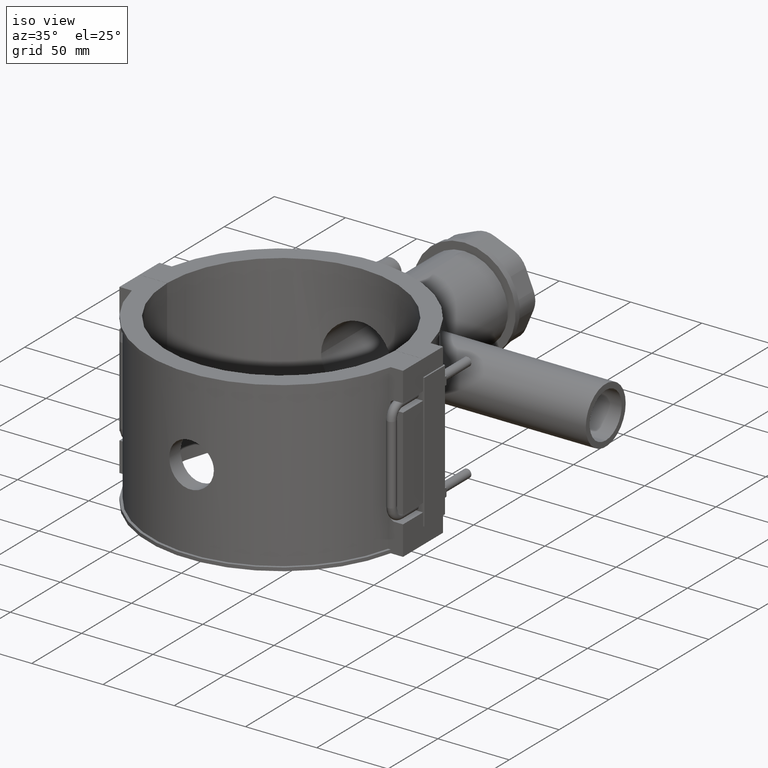
[diagram: clean part render]
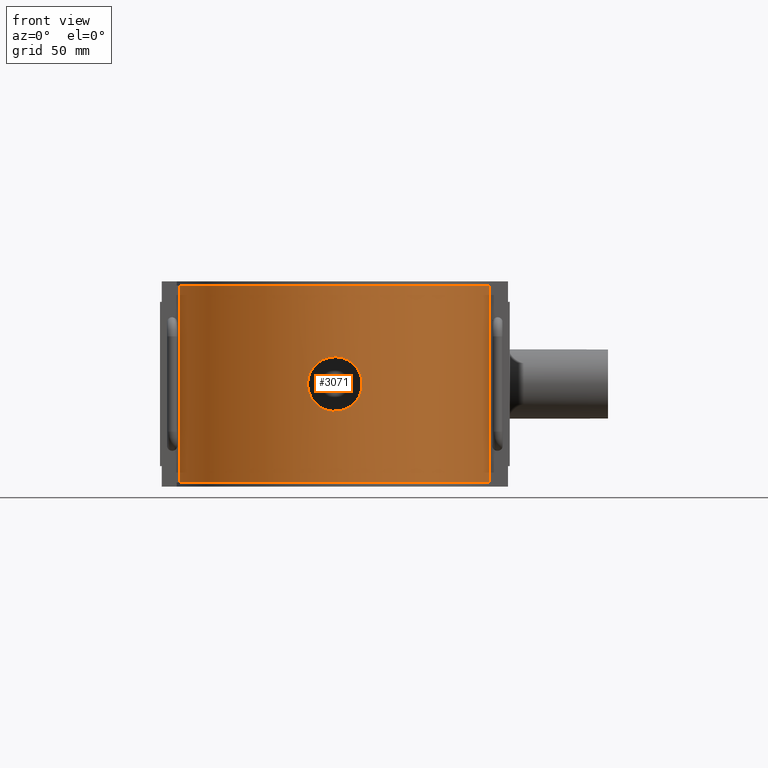
[diagram: tour spotlight — one face highlighted and labeled with its STEP entity id]
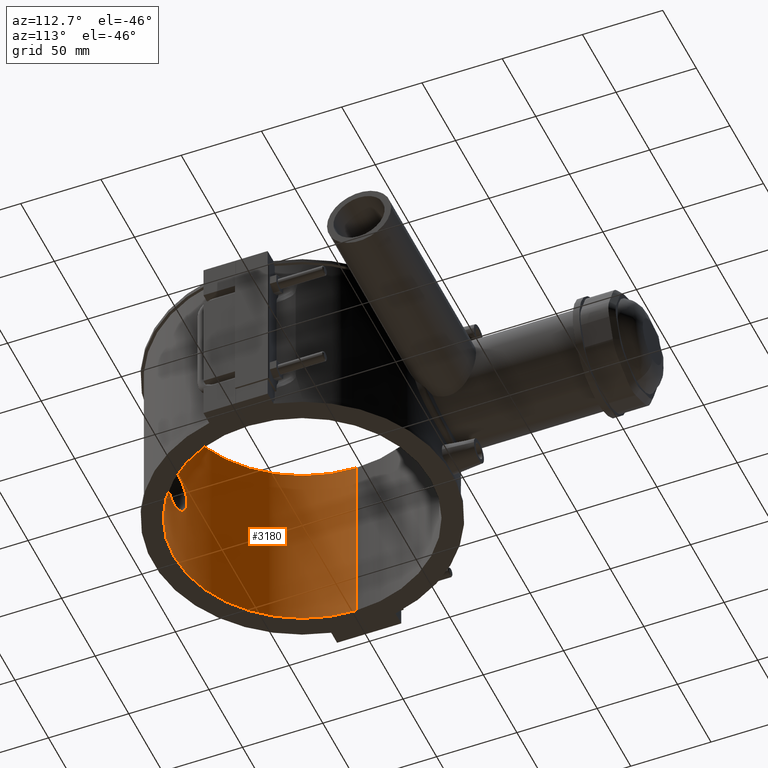
[diagram: tour spotlight — one face highlighted and labeled with its STEP entity id]
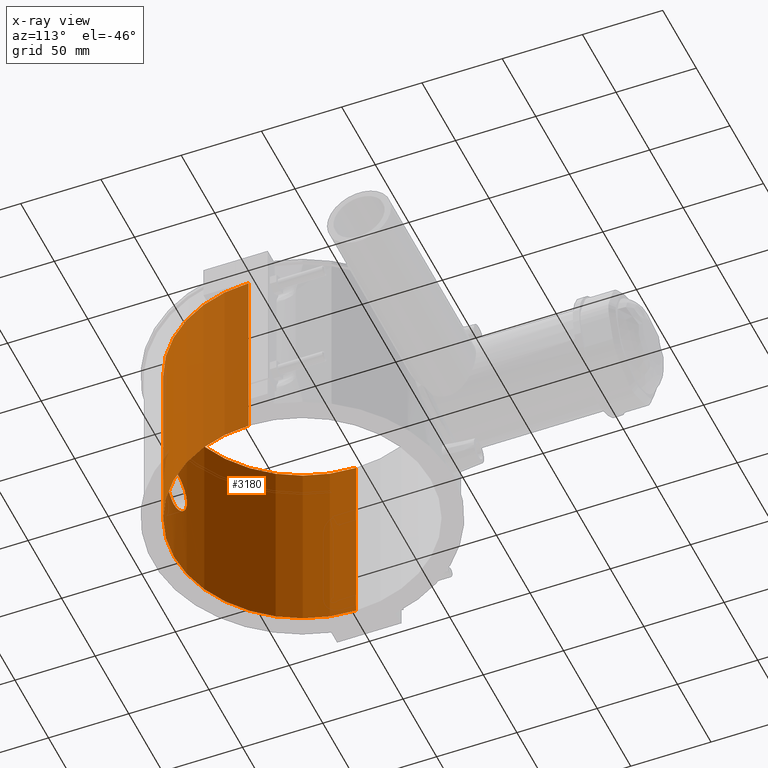
[diagram: x-ray of the same camera — body ghosted, this tour face saturated]
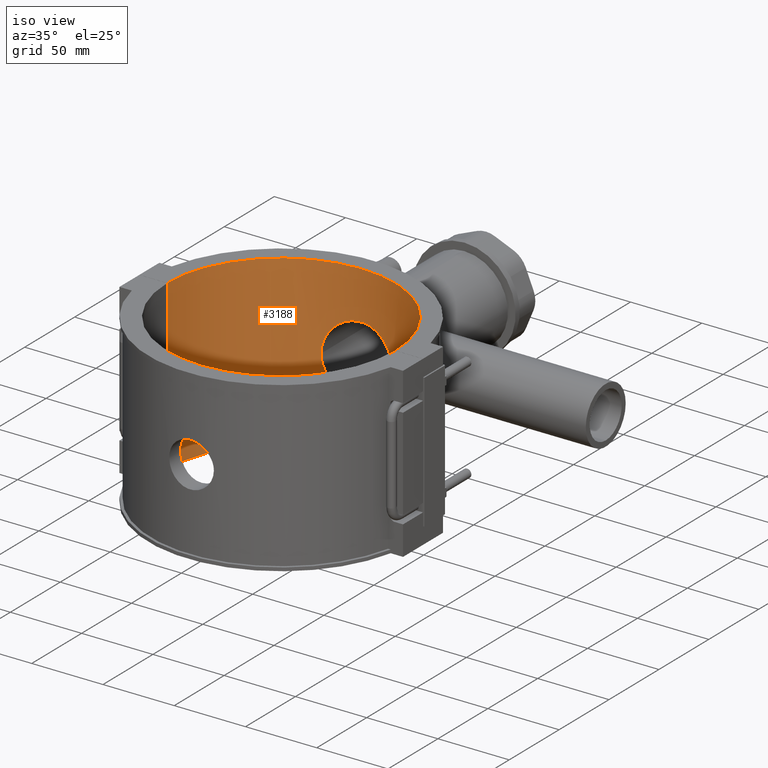
[diagram: tour spotlight — one face highlighted and labeled with its STEP entity id]
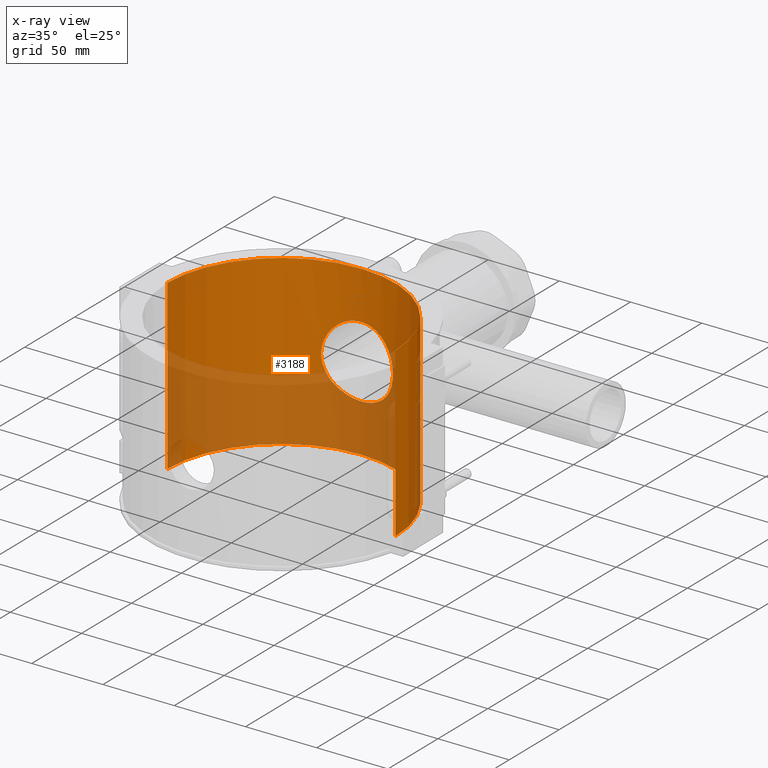
[diagram: x-ray of the same camera — body ghosted, this tour face saturated]
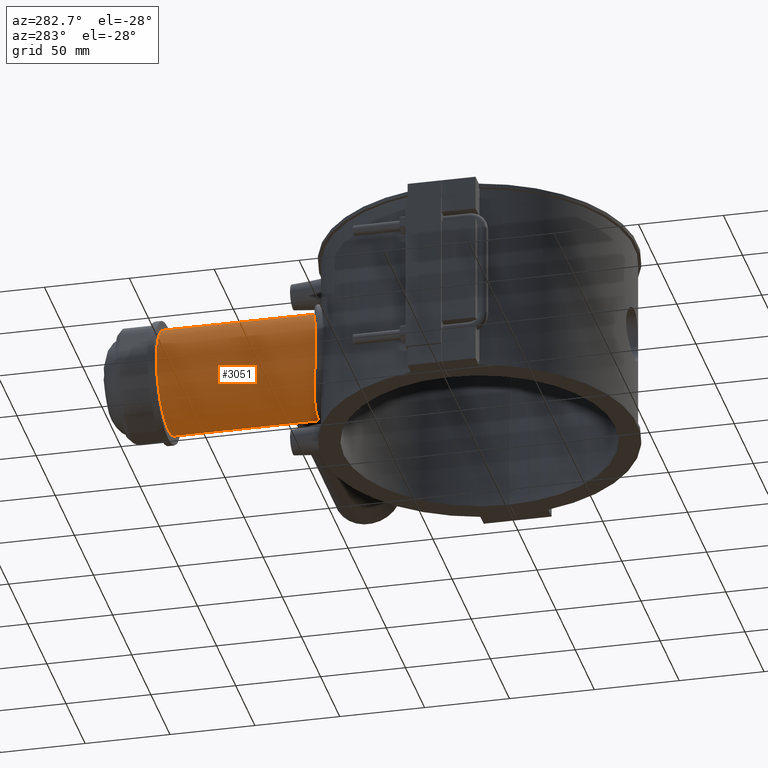
[diagram: tour spotlight — one face highlighted and labeled with its STEP entity id]
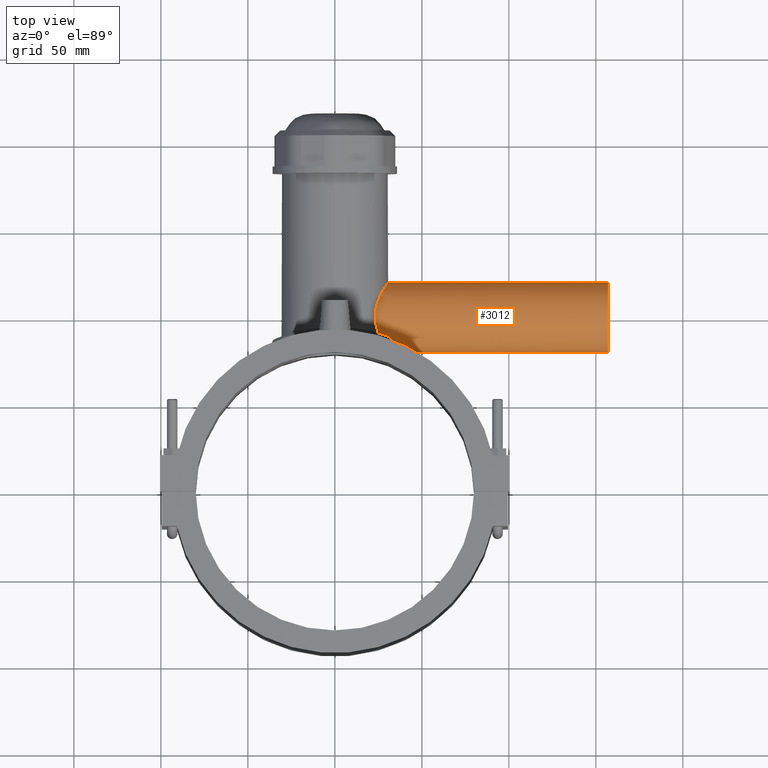
[diagram: tour spotlight — one face highlighted and labeled with its STEP entity id]
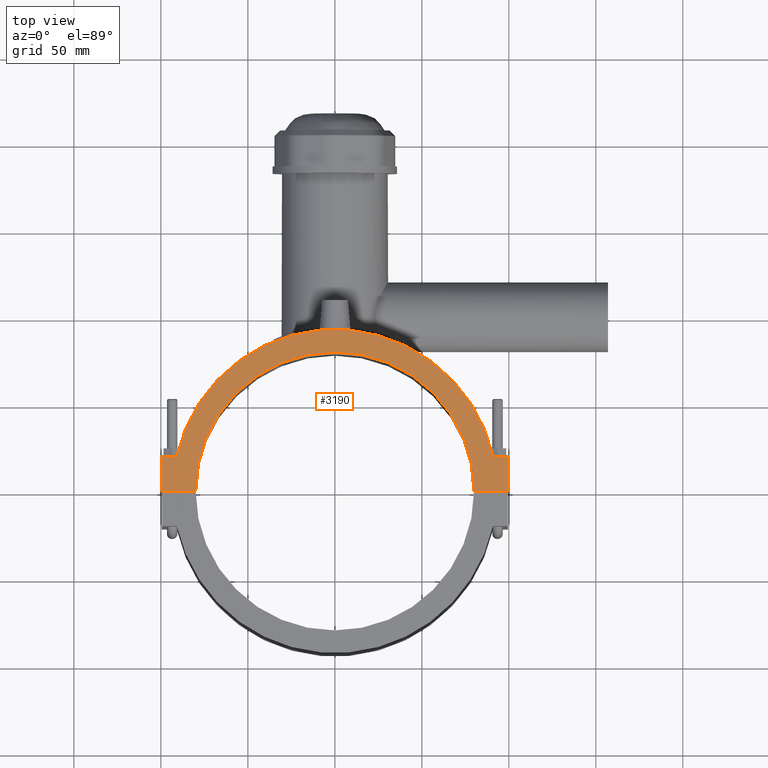
[diagram: tour spotlight — one face highlighted and labeled with its STEP entity id]
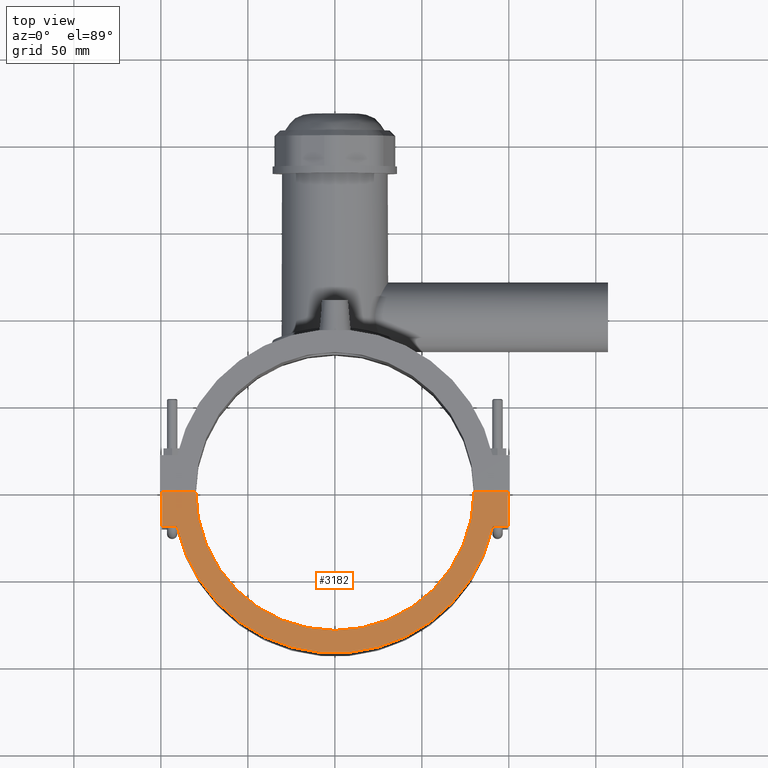
[diagram: tour spotlight — one face highlighted and labeled with its STEP entity id]
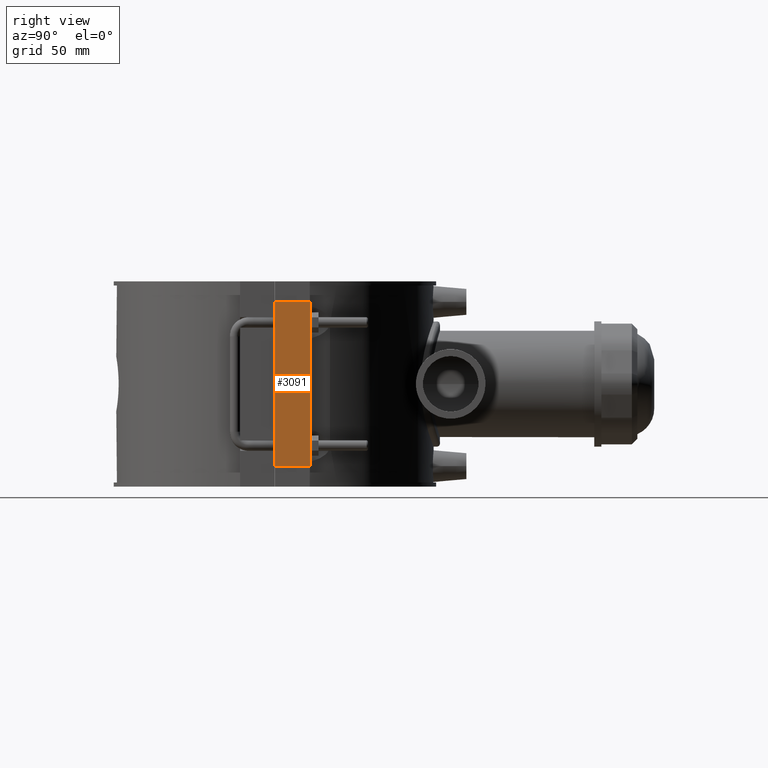
[diagram: tour spotlight — one face highlighted and labeled with its STEP entity id]
A machine part: a face-by-face anatomy tour. The part has 181 B-rep faces; the first image is the clean iso view, then the 8 largest visible faces are spotlighted one at a time (largest first), each with its STEP entity span.

Face 1 — front view, entity #3071. In plain terms, the highlighted cylindrical surface (partial cylindrical patch) has radius 91.2 mm, axis along (0, 0, 1).
Definition (entity closure, byte-faithful):
#108=LINE('',#5203,#387);
#143=LINE('',#5477,#422);
#387=VECTOR('',#3722,113.28);
#422=VECTOR('',#3799,113.28);
#745=CIRCLE('',#3280,91.2);
#753=CIRCLE('',#3294,91.2);
#826=FACE_BOUND('',#1120,.T.);
#924=FACE_OUTER_BOUND('',#1119,.T.);
#1119=EDGE_LOOP('',(#2372,#2373,#2374,#2375));
#1120=EDGE_LOOP('',(#2376));
#1290=B_SPLINE_CURVE_WITH_KNOTS('',3,(#4967,#4968,#4969,#4970,#4971,#4972,
#4973,#4974,#4975,#4976,#4977,#4978,#4979,#4980,#4981,#4982,#4983,#4984,
#4985,#4986,#4987,#4988,#4989,#4990,#4991,#4992,#4993,#4994,#4995,#4996,
#4997,#4998,#4999,#5000,#5001,#5002,#5003,#5004,#5005,#5006,#5007,#5008,
#5009,#5010,#5011,#5012,#5013,#5014,#5015,#5016,#5017,#5018,#5019,#5020,
#5021,#5022,#5023,#5024,#5025,#5026,#5027,#5028,#5029,#5030,#5031,#5032),
 .UNSPECIFIED.,.T.,.F.,(4,2,2,2,2,2,2,2,2,2,2,2,2,2,2,2,2,2,2,2,2,2,2,2,
2,2,2,2,2,2,2,2,4),(0.,0.295959713032669,0.591919426065338,0.887879139098007,
1.18383885213068,1.47978959840223,1.77574034467379,2.07169109094534,2.3676418372169,
2.66359258348845,2.95954332976001,3.25549407603156,3.55144482230312,3.84740453533579,
4.14336424836846,4.43932396140113,4.73528367443379,5.03124338746646,5.32720310049913,
5.6231628135318,5.91912252656447,6.21507327283603,6.51102401910758,6.80697476537914,
7.10292551165069,7.39887625792225,7.6948270041938,7.99077775046536,8.28672849673691,
8.58268820976958,8.87864792280225,9.17460763583492,9.47056734886759),
 .UNSPECIFIED.);
#1398=VERTEX_POINT('',#4966);
#1410=VERTEX_POINT('',#5188);
#1411=VERTEX_POINT('',#5190);
#1415=VERTEX_POINT('',#5202);
#1436=VERTEX_POINT('',#5273);
#1729=EDGE_CURVE('',#1398,#1398,#1290,.T.);
#1745=EDGE_CURVE('',#1410,#1411,#745,.T.);
#1750=EDGE_CURVE('',#1410,#1415,#108,.T.);
#1774=EDGE_CURVE('',#1436,#1415,#753,.T.);
#1809=EDGE_CURVE('',#1411,#1436,#143,.T.);
#2372=ORIENTED_EDGE('',*,*,#1745,.T.);
#2373=ORIENTED_EDGE('',*,*,#1809,.T.);
#2374=ORIENTED_EDGE('',*,*,#1774,.T.);
#2375=ORIENTED_EDGE('',*,*,#1750,.F.);
#2376=ORIENTED_EDGE('',*,*,#1729,.T.);
#2984=CYLINDRICAL_SURFACE('',#3304,91.2);
#3071=ADVANCED_FACE('',(#924,#826),#2984,.T.);
#3280=AXIS2_PLACEMENT_3D('',#5192,#3712,#3713);
#3294=AXIS2_PLACEMENT_3D('',#5274,#3759,#3760);
#3304=AXIS2_PLACEMENT_3D('',#5478,#3800,#3801);
#3712=DIRECTION('center_axis',(0.,0.,1.));
#3713=DIRECTION('ref_axis',(1.,0.,0.));
#3722=DIRECTION('',(0.,0.,1.));
#3759=DIRECTION('center_axis',(0.,0.,-1.));
#3760=DIRECTION('ref_axis',(1.,0.,0.));
#3799=DIRECTION('',(0.,0.,1.));
#3800=DIRECTION('center_axis',(0.,0.,1.));
#3801=DIRECTION('ref_axis',(1.,0.,0.));
#4966=CARTESIAN_POINT('',(15.68,-89.8419590169315,2.77555756156289E-16));
#4967=CARTESIAN_POINT('Ctrl Pts',(15.68,-89.8419590169315,2.77555756156289E-16));
#4968=CARTESIAN_POINT('Ctrl Pts',(15.68,-89.8419590169315,-0.986532376775563));
#4969=CARTESIAN_POINT('Ctrl Pts',(15.5853955062779,-89.858645458355,-2.00611944611422));
#4970=CARTESIAN_POINT('Ctrl Pts',(15.1876129222846,-89.9267320122714,-4.03304872968765));
#4971=CARTESIAN_POINT('Ctrl Pts',(14.8845269847654,-89.9780822595972,-5.04041070241388));
#4972=CARTESIAN_POINT('Ctrl Pts',(14.0838243818432,-90.1068827405403,-6.97142592237889));
#4973=CARTESIAN_POINT('Ctrl Pts',(13.5855707678945,-90.1843121101155,-7.89665457944297));
#4974=CARTESIAN_POINT('Ctrl Pts',(12.4349054637212,-90.3501577749453,-9.60718547581133));
#4975=CARTESIAN_POINT('Ctrl Pts',(11.782416461236,-90.4384039460024,-10.3924521967741));
#4976=CARTESIAN_POINT('Ctrl Pts',(10.3924732528114,-90.6086459227273,-11.7823954051987));
#4977=CARTESIAN_POINT('Ctrl Pts',(9.60721627672465,-90.696635432209,-12.4348821014695));
#4978=CARTESIAN_POINT('Ctrl Pts',(7.89667911622018,-90.8615471046099,-13.5855569046819));
#4979=CARTESIAN_POINT('Ctrl Pts',(6.9714344550965,-90.9383054445739,-14.0838212901275));
#4980=CARTESIAN_POINT('Ctrl Pts',(5.04038817634182,-91.0657497769263,-14.8845358788745));
#4981=CARTESIAN_POINT('Ctrl Pts',(4.03301157995991,-91.1164258475378,-15.1876228849263));
#4982=CARTESIAN_POINT('Ctrl Pts',(2.0060784618901,-91.1835724834178,-15.5854008772331));
#4983=CARTESIAN_POINT('Ctrl Pts',(0.986502487571852,-91.2,-15.68));
#4984=CARTESIAN_POINT('Ctrl Pts',(-0.986502487571848,-91.2,-15.68));
#4985=CARTESIAN_POINT('Ctrl Pts',(-2.00607846189009,-91.1835724834178,-15.5854008772331));
#4986=CARTESIAN_POINT('Ctrl Pts',(-4.03301157995991,-91.1164258475378,-15.1876228849263));
#4987=CARTESIAN_POINT('Ctrl Pts',(-5.04038817634182,-91.0657497769263,-14.8845358788745));
#4988=CARTESIAN_POINT('Ctrl Pts',(-6.97143445509649,-90.9383054445739,-14.0838212901275));
#4989=CARTESIAN_POINT('Ctrl Pts',(-7.89667911622018,-90.8615471046099,-13.5855569046819));
#4990=CARTESIAN_POINT('Ctrl Pts',(-9.60721627672464,-90.696635432209,-12.4348821014695));
#4991=CARTESIAN_POINT('Ctrl Pts',(-10.3924732528114,-90.6086459227273,-11.7823954051987));
#4992=CARTESIAN_POINT('Ctrl Pts',(-11.782416461236,-90.4384039460024,-10.3924521967741));
#4993=CARTESIAN_POINT('Ctrl Pts',(-12.4349054637212,-90.3501577749453,-9.60718547581133));
#4994=CARTESIAN_POINT('Ctrl Pts',(-13.5855707678945,-90.1843121101155,-7.89665457944297));
#4995=CARTESIAN_POINT('Ctrl Pts',(-14.0838243818432,-90.1068827405403,-6.97142592237888));
#4996=CARTESIAN_POINT('Ctrl Pts',(-14.8845269847654,-89.9780822595972,-5.04041070241388));
#4997=CARTESIAN_POINT('Ctrl Pts',(-15.1876129222846,-89.9267320122714,-4.03304872968765));
#4998=CARTESIAN_POINT('Ctrl Pts',(-15.5853955062779,-89.858645458355,-2.00611944611422));
#4999=CARTESIAN_POINT('Ctrl Pts',(-15.68,-89.8419590169315,-0.986532376775564));
#5000=CARTESIAN_POINT('Ctrl Pts',(-15.68,-89.8419590169315,0.986532376775564));
#5001=CARTESIAN_POINT('Ctrl Pts',(-15.5853955062779,-89.858645458355,2.00611944611422));
#5002=CARTESIAN_POINT('Ctrl Pts',(-15.1876129222846,-89.9267320122714,4.03304872968765));
#5003=CARTESIAN_POINT('Ctrl Pts',(-14.8845269847654,-89.9780822595971,5.04041070241388));
#5004=CARTESIAN_POINT('Ctrl Pts',(-14.0838243818432,-90.1068827405403,6.97142592237888));
#5005=CARTESIAN_POINT('Ctrl Pts',(-13.5855707678945,-90.1843121101155,7.89665457944297));
#5006=CARTESIAN_POINT('Ctrl Pts',(-12.4349054637212,-90.3501577749453,9.60718547581133));
#5007=CARTESIAN_POINT('Ctrl Pts',(-11.782416461236,-90.4384039460024,10.3924521967741));
#5008=CARTESIAN_POINT('Ctrl Pts',(-10.3924732528114,-90.6086459227272,11.7823954051987));
#5009=CARTESIAN_POINT('Ctrl Pts',(-9.60721627672465,-90.696635432209,12.4348821014695));
#5010=CARTESIAN_POINT('Ctrl Pts',(-7.89667911622018,-90.8615471046099,13.5855569046819));
#5011=CARTESIAN_POINT('Ctrl Pts',(-6.9714344550965,-90.9383054445739,14.0838212901275));
#5012=CARTESIAN_POINT('Ctrl Pts',(-5.04038817634182,-91.0657497769263,14.8845358788745));
#5013=CARTESIAN_POINT('Ctrl Pts',(-4.03301157995991,-91.1164258475378,15.1876228849263));
#5014=CARTESIAN_POINT('Ctrl Pts',(-2.0060784618901,-91.1835724834178,15.5854008772331));
#5015=CARTESIAN_POINT('Ctrl Pts',(-0.986502487571854,-91.2,15.68));
#5016=CARTESIAN_POINT('Ctrl Pts',(0.986502487571848,-91.2,15.68));
#5017=CARTESIAN_POINT('Ctrl Pts',(2.00607846189009,-91.1835724834178,15.5854008772331));
#5018=CARTESIAN_POINT('Ctrl Pts',(4.03301157995991,-91.1164258475378,15.1876228849263));
#5019=CARTESIAN_POINT('Ctrl Pts',(5.04038817634182,-91.0657497769263,14.8845358788745));
#5020=CARTESIAN_POINT('Ctrl Pts',(6.97143445509649,-90.9383054445739,14.0838212901275));
#5021=CARTESIAN_POINT('Ctrl Pts',(7.89667911622018,-90.8615471046099,13.5855569046819));
#5022=CARTESIAN_POINT('Ctrl Pts',(9.60721627672464,-90.696635432209,12.4348821014695));
#5023=CARTESIAN_POINT('Ctrl Pts',(10.3924732528114,-90.6086459227273,11.7823954051987));
#5024=CARTESIAN_POINT('Ctrl Pts',(11.782416461236,-90.4384039460024,10.3924521967741));
#5025=CARTESIAN_POINT('Ctrl Pts',(12.4349054637212,-90.3501577749453,9.60718547581133));
#5026=CARTESIAN_POINT('Ctrl Pts',(13.5855707678945,-90.1843121101155,7.89665457944297));
#5027=CARTESIAN_POINT('Ctrl Pts',(14.0838243818432,-90.1068827405403,6.97142592237889));
#5028=CARTESIAN_POINT('Ctrl Pts',(14.8845269847654,-89.9780822595972,5.04041070241388));
#5029=CARTESIAN_POINT('Ctrl Pts',(15.1876129222846,-89.9267320122714,4.03304872968766));
#5030=CARTESIAN_POINT('Ctrl Pts',(15.5853955062779,-89.858645458355,2.00611944611422));
#5031=CARTESIAN_POINT('Ctrl Pts',(15.68,-89.8419590169315,0.986532376775564));
#5032=CARTESIAN_POINT('Ctrl Pts',(15.68,-89.8419590169315,2.77555756156289E-16));
#5188=CARTESIAN_POINT('',(-88.9799977523039,-20.,-56.64));
#5190=CARTESIAN_POINT('',(88.9799977523039,-20.,-56.64));
#5192=CARTESIAN_POINT('Origin',(0.,0.,-56.64));
#5202=CARTESIAN_POINT('',(-88.9799977523039,-20.,56.64));
#5203=CARTESIAN_POINT('',(-88.9799977523039,-20.,0.));
#5273=CARTESIAN_POINT('',(88.9799977523039,-20.,56.64));
#5274=CARTESIAN_POINT('Origin',(0.,0.,56.64));
#5477=CARTESIAN_POINT('',(88.9799977523039,-20.,0.));
#5478=CARTESIAN_POINT('Origin',(0.,0.,0.));

Face 2 — auxiliary view, entity #3180. An x-ray twin of the same camera follows (body ghosted, this face saturated) — the face is partly hidden behind the body. In plain terms, the highlighted cylindrical surface (partial cylindrical patch) has radius 80 mm, axis along (0, 0, 1).
Definition (entity closure, byte-faithful):
#304=LINE('',#6437,#583);
#310=LINE('',#6451,#589);
#583=VECTOR('',#4260,118.);
#589=VECTOR('',#4276,118.);
#808=CIRCLE('',#3458,80.);
#809=CIRCLE('',#3459,80.);
#859=FACE_BOUND('',#1262,.T.);
#1033=FACE_OUTER_BOUND('',#1261,.T.);
#1261=EDGE_LOOP('',(#2881,#2882,#2883,#2884));
#1262=EDGE_LOOP('',(#2885));
#1291=B_SPLINE_CURVE_WITH_KNOTS('',3,(#5034,#5035,#5036,#5037,#5038,#5039,
#5040,#5041,#5042,#5043,#5044,#5045,#5046,#5047,#5048,#5049,#5050,#5051,
#5052,#5053,#5054,#5055,#5056,#5057,#5058,#5059,#5060,#5061,#5062,#5063,
#5064,#5065,#5066,#5067,#5068,#5069,#5070,#5071,#5072,#5073,#5074,#5075,
#5076,#5077,#5078,#5079,#5080,#5081,#5082,#5083,#5084,#5085,#5086,#5087,
#5088,#5089,#5090,#5091,#5092,#5093,#5094,#5095,#5096,#5097,#5098,#5099),
 .UNSPECIFIED.,.T.,.F.,(4,2,2,2,2,2,2,2,2,2,2,2,2,2,2,2,2,2,2,2,2,2,2,2,
2,2,2,2,2,2,2,2,4),(0.,0.296156085444406,0.592312170888811,0.888468256333217,
1.18462434177762,1.48076514377796,1.7769059457783,2.07304674777863,2.36918754977897,
2.66532835177931,2.96146915377964,3.25760995577998,3.55375075778032,3.84990684322472,
4.14606292866913,4.44221901411353,4.73837509955794,5.03453118500234,5.33068727044675,
5.62684335589116,5.92299944133556,6.2191402433359,6.51528104533623,6.81142184733657,
7.10756264933691,7.40370345133724,7.69984425333758,7.99598505533792,8.29212585733825,
8.58828194278266,8.88443802822707,9.18059411367147,9.47675019911588),
 .UNSPECIFIED.);
#1399=VERTEX_POINT('',#5033);
#1618=VERTEX_POINT('',#6434);
#1619=VERTEX_POINT('',#6436);
#1621=VERTEX_POINT('',#6448);
#1622=VERTEX_POINT('',#6450);
#1730=EDGE_CURVE('',#1399,#1399,#1291,.T.);
#2046=EDGE_CURVE('',#1619,#1618,#304,.T.);
#2052=EDGE_CURVE('',#1621,#1618,#808,.T.);
#2053=EDGE_CURVE('',#1621,#1622,#310,.T.);
#2054=EDGE_CURVE('',#1619,#1622,#809,.T.);
#2881=ORIENTED_EDGE('',*,*,#2046,.T.);
#2882=ORIENTED_EDGE('',*,*,#2052,.F.);
#2883=ORIENTED_EDGE('',*,*,#2053,.T.);
#2884=ORIENTED_EDGE('',*,*,#2054,.F.);
#2885=ORIENTED_EDGE('',*,*,#1730,.T.);
#3008=CYLINDRICAL_SURFACE('',#3457,80.);
#3180=ADVANCED_FACE('',(#1033,#859),#3008,.F.);
#3457=AXIS2_PLACEMENT_3D('',#6447,#4272,#4273);
#3458=AXIS2_PLACEMENT_3D('',#6449,#4274,#4275);
#3459=AXIS2_PLACEMENT_3D('',#6452,#4277,#4278);
#4260=DIRECTION('',(0.,0.,-1.));
#4272=DIRECTION('center_axis',(0.,0.,1.));
#4273=DIRECTION('ref_axis',(-1.,0.,0.));
#4274=DIRECTION('center_axis',(0.,0.,1.));
#4275=DIRECTION('ref_axis',(-1.,0.,0.));
#4276=DIRECTION('',(0.,0.,1.));
#4277=DIRECTION('center_axis',(0.,0.,-1.));
#4278=DIRECTION('ref_axis',(-1.,0.,0.));
#5033=CARTESIAN_POINT('',(15.68,-78.448311645312,5.55111512312578E-16));
#5034=CARTESIAN_POINT('Ctrl Pts',(15.68,-78.448311645312,5.55111512312578E-16));
#5035=CARTESIAN_POINT('Ctrl Pts',(15.68,-78.448311645312,0.987186951481353));
#5036=CARTESIAN_POINT('Ctrl Pts',(15.585269781171,-78.4674486960624,2.00724879326082));
#5037=CARTESIAN_POINT('Ctrl Pts',(15.1871879816802,-78.5454674708362,4.03472466195535));
#5038=CARTESIAN_POINT('Ctrl Pts',(14.8839308643434,-78.6042899064943,5.04215951600753));
#5039=CARTESIAN_POINT('Ctrl Pts',(14.0830490148511,-78.7517207085387,6.97298412351486));
#5040=CARTESIAN_POINT('Ctrl Pts',(13.5847874087764,-78.8403032553538,7.89796056527916));
#5041=CARTESIAN_POINT('Ctrl Pts',(12.4343465909795,-79.0299113701504,9.60787463052764));
#5042=CARTESIAN_POINT('Ctrl Pts',(11.7820881469367,-79.1307424017254,10.3927805110734));
#5043=CARTESIAN_POINT('Ctrl Pts',(10.3928163594091,-79.3251619064945,11.782052298601));
#5044=CARTESIAN_POINT('Ctrl Pts',(9.60792710684558,-79.4256101872208,12.4343067778681));
#5045=CARTESIAN_POINT('Ctrl Pts',(7.89800248439454,-79.6138265231327,13.5847637118043));
#5046=CARTESIAN_POINT('Ctrl Pts',(6.97299887708083,-79.7014093014697,14.0830436777629));
#5047=CARTESIAN_POINT('Ctrl Pts',(5.04212136329549,-79.846818158472,14.8839459070955));
#5048=CARTESIAN_POINT('Ctrl Pts',(4.03466154603626,-79.9046346906327,15.1872049203389));
#5049=CARTESIAN_POINT('Ctrl Pts',(2.00717901498012,-79.9812501229907,15.5852789351327));
#5050=CARTESIAN_POINT('Ctrl Pts',(0.98713600666779,-80.,15.68));
#5051=CARTESIAN_POINT('Ctrl Pts',(-0.987136006667788,-80.,15.68));
#5052=CARTESIAN_POINT('Ctrl Pts',(-2.00717901498011,-79.9812501229907,15.5852789351327));
#5053=CARTESIAN_POINT('Ctrl Pts',(-4.03466154603626,-79.9046346906327,15.1872049203389));
#5054=CARTESIAN_POINT('Ctrl Pts',(-5.04212136329548,-79.846818158472,14.8839459070955));
#5055=CARTESIAN_POINT('Ctrl Pts',(-6.97299887708082,-79.7014093014697,14.0830436777629));
#5056=CARTESIAN_POINT('Ctrl Pts',(-7.89800248439454,-79.6138265231327,13.5847637118043));
#5057=CARTESIAN_POINT('Ctrl Pts',(-9.60792710684558,-79.4256101872208,12.4343067778681));
#5058=CARTESIAN_POINT('Ctrl Pts',(-10.3928163594091,-79.3251619064945,11.782052298601));
#5059=CARTESIAN_POINT('Ctrl Pts',(-11.7820881469367,-79.1307424017254,10.3927805110734));
#5060=CARTESIAN_POINT('Ctrl Pts',(-12.4343465909795,-79.0299113701504,9.60787463052764));
#5061=CARTESIAN_POINT('Ctrl Pts',(-13.5847874087764,-78.8403032553538,7.89796056527916));
#5062=CARTESIAN_POINT('Ctrl Pts',(-14.0830490148511,-78.7517207085387,6.97298412351486));
#5063=CARTESIAN_POINT('Ctrl Pts',(-14.8839308643434,-78.6042899064943,5.04215951600753));
#5064=CARTESIAN_POINT('Ctrl Pts',(-15.1871879816802,-78.5454674708362,4.03472466195535));
#5065=CARTESIAN_POINT('Ctrl Pts',(-15.585269781171,-78.4674486960624,2.00724879326082));
#5066=CARTESIAN_POINT('Ctrl Pts',(-15.68,-78.448311645312,0.98718695148135));
#5067=CARTESIAN_POINT('Ctrl Pts',(-15.68,-78.448311645312,-0.98718695148135));
#5068=CARTESIAN_POINT('Ctrl Pts',(-15.585269781171,-78.4674486960624,-2.00724879326082));
#5069=CARTESIAN_POINT('Ctrl Pts',(-15.1871879816802,-78.5454674708362,-4.03472466195535));
#5070=CARTESIAN_POINT('Ctrl Pts',(-14.8839308643434,-78.6042899064943,-5.04215951600753));
#5071=CARTESIAN_POINT('Ctrl Pts',(-14.0830490148511,-78.7517207085387,-6.97298412351486));
#5072=CARTESIAN_POINT('Ctrl Pts',(-13.5847874087764,-78.8403032553538,-7.89796056527916));
#5073=CARTESIAN_POINT('Ctrl Pts',(-12.4343465909795,-79.0299113701504,-9.60787463052764));
#5074=CARTESIAN_POINT('Ctrl Pts',(-11.7820881469367,-79.1307424017254,-10.3927805110734));
#5075=CARTESIAN_POINT('Ctrl Pts',(-10.3928163594091,-79.3251619064945,-11.782052298601));
#5076=CARTESIAN_POINT('Ctrl Pts',(-9.60792710684558,-79.4256101872208,-12.4343067778681));
#5077=CARTESIAN_POINT('Ctrl Pts',(-7.89800248439454,-79.6138265231327,-13.5847637118043));
#5078=CARTESIAN_POINT('Ctrl Pts',(-6.97299887708083,-79.7014093014697,-14.0830436777629));
#5079=CARTESIAN_POINT('Ctrl Pts',(-5.04212136329549,-79.846818158472,-14.8839459070955));
#5080=CARTESIAN_POINT('Ctrl Pts',(-4.03466154603626,-79.9046346906327,-15.1872049203389));
#5081=CARTESIAN_POINT('Ctrl Pts',(-2.00717901498012,-79.9812501229907,-15.5852789351327));
#5082=CARTESIAN_POINT('Ctrl Pts',(-0.987136006667792,-80.,-15.68));
#5083=CARTESIAN_POINT('Ctrl Pts',(0.987136006667786,-80.,-15.68));
#5084=CARTESIAN_POINT('Ctrl Pts',(2.00717901498011,-79.9812501229907,-15.5852789351327));
#5085=CARTESIAN_POINT('Ctrl Pts',(4.03466154603625,-79.9046346906327,-15.1872049203389));
#5086=CARTESIAN_POINT('Ctrl Pts',(5.04212136329548,-79.846818158472,-14.8839459070955));
#5087=CARTESIAN_POINT('Ctrl Pts',(6.97299887708082,-79.7014093014697,-14.0830436777629));
#5088=CARTESIAN_POINT('Ctrl Pts',(7.89800248439454,-79.6138265231327,-13.5847637118043));
#5089=CARTESIAN_POINT('Ctrl Pts',(9.60792710684558,-79.4256101872208,-12.4343067778681));
#5090=CARTESIAN_POINT('Ctrl Pts',(10.3928163594091,-79.3251619064945,-11.782052298601));
#5091=CARTESIAN_POINT('Ctrl Pts',(11.7820881469367,-79.1307424017254,-10.3927805110734));
#5092=CARTESIAN_POINT('Ctrl Pts',(12.4343465909795,-79.0299113701504,-9.60787463052764));
#5093=CARTESIAN_POINT('Ctrl Pts',(13.5847874087764,-78.8403032553538,-7.89796056527915));
#5094=CARTESIAN_POINT('Ctrl Pts',(14.0830490148511,-78.7517207085387,-6.97298412351485));
#5095=CARTESIAN_POINT('Ctrl Pts',(14.8839308643434,-78.6042899064943,-5.04215951600752));
#5096=CARTESIAN_POINT('Ctrl Pts',(15.1871879816802,-78.5454674708362,-4.03472466195535));
#5097=CARTESIAN_POINT('Ctrl Pts',(15.585269781171,-78.4674486960624,-2.00724879326082));
#5098=CARTESIAN_POINT('Ctrl Pts',(15.68,-78.448311645312,-0.987186951481351));
#5099=CARTESIAN_POINT('Ctrl Pts',(15.68,-78.448311645312,-2.77555756156289E-16));
#6434=CARTESIAN_POINT('',(79.9999843749985,-0.0500000000000078,-59.));
#6436=CARTESIAN_POINT('',(79.9999843749985,-0.0500000000000078,59.));
#6437=CARTESIAN_POINT('',(79.9999843749985,-0.0500000000000078,0.));
#6447=CARTESIAN_POINT('Origin',(0.,0.,0.));
#6448=CARTESIAN_POINT('',(-79.9999843749985,-0.0500000000000078,-59.));
#6449=CARTESIAN_POINT('Origin',(0.,0.,-59.));
#6450=CARTESIAN_POINT('',(-79.9999843749985,-0.0500000000000078,59.));
#6451=CARTESIAN_POINT('',(-79.9999843749985,-0.0500000000000078,0.));
#6452=CARTESIAN_POINT('Origin',(0.,0.,59.));

Face 3 — iso view, entity #3188. An x-ray twin of the same camera follows (body ghosted, this face saturated) — the face is partly hidden behind the body. In plain terms, the highlighted cylindrical surface (partial cylindrical patch) has radius 80 mm, axis along (0, 0, 1).
Definition (entity closure, byte-faithful):
#267=LINE('',#6161,#546);
#314=LINE('',#6463,#593);
#546=VECTOR('',#4133,118.);
#593=VECTOR('',#4292,118.);
#810=CIRCLE('',#3468,80.);
#811=CIRCLE('',#3469,80.);
#862=FACE_BOUND('',#1273,.T.);
#1041=FACE_OUTER_BOUND('',#1272,.T.);
#1272=EDGE_LOOP('',(#2942,#2943,#2944,#2945));
#1273=EDGE_LOOP('',(#2946));
#1276=B_SPLINE_CURVE_WITH_KNOTS('',3,(#4314,#4315,#4316,#4317,#4318,#4319,
#4320,#4321,#4322,#4323,#4324,#4325,#4326,#4327,#4328,#4329,#4330,#4331,
#4332,#4333,#4334,#4335,#4336,#4337,#4338,#4339,#4340,#4341,#4342,#4343,
#4344,#4345,#4346,#4347,#4348,#4349,#4350,#4351,#4352,#4353,#4354,#4355,
#4356,#4357,#4358,#4359,#4360,#4361,#4362,#4363,#4364,#4365,#4366,#4367,
#4368,#4369,#4370,#4371,#4372,#4373,#4374,#4375,#4376,#4377,#4378,#4379),
 .UNSPECIFIED.,.T.,.F.,(4,2,2,2,2,2,2,2,2,2,2,2,2,2,2,2,2,2,2,2,2,2,2,2,
2,2,2,2,2,2,2,2,4),(0.,0.478249835182567,0.956499670365133,1.4347495055477,
1.91299934073027,2.39107439185071,2.86914944297116,3.3472244940916,3.82529954521205,
4.3033745963325,4.78144964745294,5.25952469857339,5.73759974969383,6.2158495848764,
6.69409942005897,7.17234925524154,7.6505990904241,8.12884892560667,8.60709876078923,
9.0853485959718,9.56359843115437,10.0416734822748,10.5197485333953,10.9978235845157,
11.4758986356362,11.9539736867566,12.432048737877,12.9101237889975,13.3881988401179,
13.8664486753005,14.3446985104831,14.8229483456656,15.3011981808482),
 .UNSPECIFIED.);
#1331=VERTEX_POINT('',#4313);
#1581=VERTEX_POINT('',#6158);
#1582=VERTEX_POINT('',#6160);
#1623=VERTEX_POINT('',#6460);
#1624=VERTEX_POINT('',#6462);
#1626=EDGE_CURVE('',#1331,#1331,#1276,.T.);
#1984=EDGE_CURVE('',#1582,#1581,#267,.T.);
#2058=EDGE_CURVE('',#1624,#1623,#314,.T.);
#2063=EDGE_CURVE('',#1582,#1623,#810,.T.);
#2064=EDGE_CURVE('',#1624,#1581,#811,.T.);
#2942=ORIENTED_EDGE('',*,*,#2058,.T.);
#2943=ORIENTED_EDGE('',*,*,#2063,.F.);
#2944=ORIENTED_EDGE('',*,*,#1984,.T.);
#2945=ORIENTED_EDGE('',*,*,#2064,.F.);
#2946=ORIENTED_EDGE('',*,*,#1626,.T.);
#3009=CYLINDRICAL_SURFACE('',#3467,80.);
#3188=ADVANCED_FACE('',(#1041,#862),#3009,.F.);
#3467=AXIS2_PLACEMENT_3D('',#6471,#4301,#4302);
#3468=AXIS2_PLACEMENT_3D('',#6472,#4303,#4304);
#3469=AXIS2_PLACEMENT_3D('',#6473,#4305,#4306);
#4133=DIRECTION('',(0.,0.,-1.));
#4292=DIRECTION('',(0.,0.,1.));
#4301=DIRECTION('center_axis',(0.,0.,1.));
#4302=DIRECTION('ref_axis',(-1.,0.,0.));
#4303=DIRECTION('center_axis',(0.,0.,-1.));
#4304=DIRECTION('ref_axis',(-1.,0.,0.));
#4305=DIRECTION('center_axis',(0.,0.,1.));
#4306=DIRECTION('ref_axis',(-1.,0.,0.));
#4313=CARTESIAN_POINT('',(-25.2,75.9273336816196,3.13638004456607E-14));
#4314=CARTESIAN_POINT('Ctrl Pts',(-25.2,75.9273336816196,3.13638004456607E-14));
#4315=CARTESIAN_POINT('Ctrl Pts',(-25.2,75.9273336816196,1.59416611727525));
#4316=CARTESIAN_POINT('Ctrl Pts',(-25.0462928547568,75.9789283853732,3.23898072231238));
#4317=CARTESIAN_POINT('Ctrl Pts',(-24.4031057135984,76.1879437689428,6.50355391852654));
#4318=CARTESIAN_POINT('Ctrl Pts',(-23.9138054838441,76.3451619503338,8.1233608865186));
#4319=CARTESIAN_POINT('Ctrl Pts',(-22.6247265682623,76.737054634206,11.2241204595188));
#4320=CARTESIAN_POINT('Ctrl Pts',(-21.8239250067508,76.9716244187041,12.7077502567947));
#4321=CARTESIAN_POINT('Ctrl Pts',(-19.9775921859081,77.4713526323481,15.4488326394276));
#4322=CARTESIAN_POINT('Ctrl Pts',(-18.9319071892204,77.7360012842395,16.7062745825816));
#4323=CARTESIAN_POINT('Ctrl Pts',(-16.706681279123,78.2444173975877,18.931500492679));
#4324=CARTESIAN_POINT('Ctrl Pts',(-15.4494311851778,78.5063924161446,19.9771372189339));
#4325=CARTESIAN_POINT('Ctrl Pts',(-12.7082381610484,78.9964509137096,21.8236481443651));
#4326=CARTESIAN_POINT('Ctrl Pts',(-11.2243057965679,79.2240825108673,22.6246579265467));
#4327=CARTESIAN_POINT('Ctrl Pts',(-8.12294547364162,79.6018721322179,23.9139697744006));
#4328=CARTESIAN_POINT('Ctrl Pts',(-6.50284948639752,79.7520367314701,24.4032957793212));
#4329=CARTESIAN_POINT('Ctrl Pts',(-3.23818938511697,79.9511634922689,25.0463974624335));
#4330=CARTESIAN_POINT('Ctrl Pts',(-1.59358350373482,80.,25.2));
#4331=CARTESIAN_POINT('Ctrl Pts',(1.59358350373482,80.,25.2));
#4332=CARTESIAN_POINT('Ctrl Pts',(3.23818938511696,79.9511634922689,25.0463974624335));
#4333=CARTESIAN_POINT('Ctrl Pts',(6.50284948639751,79.7520367314701,24.4032957793212));
#4334=CARTESIAN_POINT('Ctrl Pts',(8.12294547364161,79.6018721322179,23.9139697744006));
#4335=CARTESIAN_POINT('Ctrl Pts',(11.2243057965679,79.2240825108673,22.6246579265467));
#4336=CARTESIAN_POINT('Ctrl Pts',(12.7082381610484,78.9964509137096,21.8236481443651));
#4337=CARTESIAN_POINT('Ctrl Pts',(15.4494311851777,78.5063924161446,19.9771372189339));
#4338=CARTESIAN_POINT('Ctrl Pts',(16.706681279123,78.2444173975877,18.931500492679));
#4339=CARTESIAN_POINT('Ctrl Pts',(18.9319071892204,77.7360012842395,16.7062745825816));
#4340=CARTESIAN_POINT('Ctrl Pts',(19.977592185908,77.4713526323481,15.4488326394277));
#4341=CARTESIAN_POINT('Ctrl Pts',(21.8239250067508,76.9716244187041,12.7077502567947));
#4342=CARTESIAN_POINT('Ctrl Pts',(22.6247265682623,76.737054634206,11.2241204595188));
#4343=CARTESIAN_POINT('Ctrl Pts',(23.9138054838441,76.3451619503338,8.1233608865186));
#4344=CARTESIAN_POINT('Ctrl Pts',(24.4031057135984,76.1879437689428,6.50355391852655));
#4345=CARTESIAN_POINT('Ctrl Pts',(25.0462928547568,75.9789283853732,3.23898072231238));
#4346=CARTESIAN_POINT('Ctrl Pts',(25.2,75.9273336816196,1.59416611727525));
#4347=CARTESIAN_POINT('Ctrl Pts',(25.2,75.9273336816196,-1.59416611727519));
#4348=CARTESIAN_POINT('Ctrl Pts',(25.0462928547568,75.9789283853732,-3.23898072231231));
#4349=CARTESIAN_POINT('Ctrl Pts',(24.4031057135984,76.1879437689428,-6.50355391852648));
#4350=CARTESIAN_POINT('Ctrl Pts',(23.9138054838441,76.3451619503338,-8.12336088651854));
#4351=CARTESIAN_POINT('Ctrl Pts',(22.6247265682623,76.737054634206,-11.2241204595187));
#4352=CARTESIAN_POINT('Ctrl Pts',(21.8239250067508,76.9716244187041,-12.7077502567946));
#4353=CARTESIAN_POINT('Ctrl Pts',(19.9775921859081,77.4713526323481,-15.4488326394276));
#4354=CARTESIAN_POINT('Ctrl Pts',(18.9319071892204,77.7360012842395,-16.7062745825816));
#4355=CARTESIAN_POINT('Ctrl Pts',(16.706681279123,78.2444173975877,-18.9315004926789));
#4356=CARTESIAN_POINT('Ctrl Pts',(15.4494311851778,78.5063924161446,-19.9771372189338));
#4357=CARTESIAN_POINT('Ctrl Pts',(12.7082381610485,78.9964509137096,-21.823648144365));
#4358=CARTESIAN_POINT('Ctrl Pts',(11.2243057965679,79.2240825108673,-22.6246579265467));
#4359=CARTESIAN_POINT('Ctrl Pts',(8.12294547364163,79.6018721322179,-23.9139697744005));
#4360=CARTESIAN_POINT('Ctrl Pts',(6.50284948639752,79.7520367314701,-24.4032957793211));
#4361=CARTESIAN_POINT('Ctrl Pts',(3.23818938511697,79.9511634922689,-25.0463974624335));
#4362=CARTESIAN_POINT('Ctrl Pts',(1.59358350373482,80.,-25.1999999999999));
#4363=CARTESIAN_POINT('Ctrl Pts',(-1.59358350373481,80.,-25.1999999999999));
#4364=CARTESIAN_POINT('Ctrl Pts',(-3.23818938511695,79.9511634922689,-25.0463974624335));
#4365=CARTESIAN_POINT('Ctrl Pts',(-6.5028494863975,79.7520367314701,-24.4032957793211));
#4366=CARTESIAN_POINT('Ctrl Pts',(-8.12294547364161,79.6018721322179,-23.9139697744006));
#4367=CARTESIAN_POINT('Ctrl Pts',(-11.2243057965678,79.2240825108673,-22.6246579265467));
#4368=CARTESIAN_POINT('Ctrl Pts',(-12.7082381610484,78.9964509137096,-21.8236481443651));
#4369=CARTESIAN_POINT('Ctrl Pts',(-15.4494311851777,78.5063924161446,-19.9771372189339));
#4370=CARTESIAN_POINT('Ctrl Pts',(-16.706681279123,78.2444173975877,-18.931500492679));
#4371=CARTESIAN_POINT('Ctrl Pts',(-18.9319071892203,77.7360012842395,-16.7062745825816));
#4372=CARTESIAN_POINT('Ctrl Pts',(-19.977592185908,77.4713526323481,-15.4488326394276));
#4373=CARTESIAN_POINT('Ctrl Pts',(-21.8239250067508,76.9716244187041,-12.7077502567947));
#4374=CARTESIAN_POINT('Ctrl Pts',(-22.6247265682623,76.737054634206,-11.2241204595188));
#4375=CARTESIAN_POINT('Ctrl Pts',(-23.9138054838441,76.3451619503338,-8.12336088651855));
#4376=CARTESIAN_POINT('Ctrl Pts',(-24.4031057135984,76.1879437689428,-6.50355391852648));
#4377=CARTESIAN_POINT('Ctrl Pts',(-25.0462928547568,75.9789283853732,-3.23898072231231));
#4378=CARTESIAN_POINT('Ctrl Pts',(-25.2,75.9273336816196,-1.59416611727519));
#4379=CARTESIAN_POINT('Ctrl Pts',(-25.2,75.9273336816196,3.1641356201817E-14));
#6158=CARTESIAN_POINT('',(-79.9999843749985,0.0500000000000078,-59.));
#6160=CARTESIAN_POINT('',(-79.9999843749985,0.0500000000000078,59.));
#6161=CARTESIAN_POINT('',(-79.9999843749985,0.0500000000000078,0.));
#6460=CARTESIAN_POINT('',(79.9999843749985,0.0500000000000078,59.));
#6462=CARTESIAN_POINT('',(79.9999843749985,0.0500000000000078,-59.));
#6463=CARTESIAN_POINT('',(79.9999843749985,0.0500000000000078,0.));
#6471=CARTESIAN_POINT('Origin',(0.,0.,0.));
#6472=CARTESIAN_POINT('Origin',(0.,0.,59.));
#6473=CARTESIAN_POINT('Origin',(0.,0.,-59.));

Face 4 — auxiliary view, entity #3051. In plain terms, the highlighted cylindrical surface (bore or boss wall) has radius 30.6 mm, axis along (0, 1, 0).
Definition (entity closure, byte-faithful):
#738=CIRCLE('',#3264,30.6);
#819=FACE_BOUND('',#1093,.T.);
#904=FACE_OUTER_BOUND('',#1092,.T.);
#1092=EDGE_LOOP('',(#2250,#2251,#2252));
#1093=EDGE_LOOP('',(#2253));
#1285=B_SPLINE_CURVE_WITH_KNOTS('',3,(#4510,#4511,#4512,#4513,#4514,#4515,
#4516,#4517),.UNSPECIFIED.,.F.,.F.,(4,2,2,4),(0.,0.393500533103456,0.787001066206912,
0.979896308747324),.UNSPECIFIED.);
#1286=B_SPLINE_CURVE_WITH_KNOTS('',3,(#4518,#4519,#4520,#4521,#4522,#4523,
#4524,#4525,#4526,#4527,#4528,#4529,#4530,#4531,#4532,#4533,#4534,#4535,
#4536,#4537,#4538,#4539,#4540,#4541,#4542,#4543,#4544,#4545,#4546,#4547,
#4548,#4549,#4550,#4551,#4552,#4553,#4554,#4555,#4556,#4557),
 .UNSPECIFIED.,.F.,.F.,(4,2,2,2,2,2,2,2,2,2,2,2,2,2,2,2,2,2,2,4),(5.28486926884631,
5.47776451138673,5.87126504449018,6.26476557759364,6.6582661106971,7.05176664380055,
7.44526717690401,7.83876771000746,8.22836287410321,8.61795803819896,9.00755320229471,
9.39714836639046,9.78674353048621,10.176338694582,10.5659338586777,10.9555290227735,
11.3490295558769,11.7425300889804,12.1360306220838,12.5295311551873),
 .UNSPECIFIED.);
#1287=B_SPLINE_CURVE_WITH_KNOTS('',3,(#4764,#4765,#4766,#4767,#4768,#4769,
#4770,#4771,#4772,#4773,#4774,#4775,#4776,#4777,#4778,#4779,#4780,#4781,
#4782,#4783,#4784,#4785,#4786,#4787,#4788,#4789,#4790,#4791,#4792,#4793,
#4794,#4795,#4796,#4797,#4798,#4799,#4800,#4801,#4802,#4803,#4804,#4805,
#4806,#4807,#4808,#4809,#4810,#4811,#4812,#4813,#4814,#4815,#4816,#4817),
 .UNSPECIFIED.,.F.,.F.,(4,2,2,2,2,2,2,2,2,2,2,2,2,2,2,2,2,2,2,2,2,2,2,2,
2,2,4),(1.80094047952603,2.32386041600461,2.90459074452711,3.4853210730496,
4.0660514015721,4.64678173009459,5.22751205861709,5.80824238713958,6.38897271566208,
6.96970304418458,7.55066814818573,8.13163325218688,8.71259835618804,9.29356346018919,
9.87452856419034,10.4554936681915,11.0364587721926,11.6174238761938,12.1981542047163,
12.7788845332388,13.3596148617613,13.9403451902838,14.5210755188063,15.1018058473288,
15.6825361758513,16.2632665043738,16.7861864408523),.UNSPECIFIED.);
#1335=VERTEX_POINT('',#4444);
#1341=VERTEX_POINT('',#4502);
#1342=VERTEX_POINT('',#4509);
#1396=VERTEX_POINT('',#4818);
#1636=EDGE_CURVE('',#1342,#1341,#1285,.T.);
#1637=EDGE_CURVE('',#1335,#1342,#1286,.T.);
#1724=EDGE_CURVE('',#1335,#1341,#1287,.T.);
#1725=EDGE_CURVE('',#1396,#1396,#738,.T.);
#2250=ORIENTED_EDGE('',*,*,#1724,.F.);
#2251=ORIENTED_EDGE('',*,*,#1637,.T.);
#2252=ORIENTED_EDGE('',*,*,#1636,.T.);
#2253=ORIENTED_EDGE('',*,*,#1725,.F.);
#2974=CYLINDRICAL_SURFACE('',#3263,30.6);
#3051=ADVANCED_FACE('',(#904,#819),#2974,.T.);
#3263=AXIS2_PLACEMENT_3D('',#4763,#3670,#3671);
#3264=AXIS2_PLACEMENT_3D('',#4819,#3672,#3673);
#3670=DIRECTION('center_axis',(0.,1.,3.06161699786838E-16));
#3671=DIRECTION('ref_axis',(0.,0.,1.));
#3672=DIRECTION('center_axis',(0.,1.,3.06161699786838E-16));
#3673=DIRECTION('ref_axis',(1.,0.,0.));
#4444=CARTESIAN_POINT('',(25.0384724076046,91.4834302129449,17.590761765521));
#4502=CARTESIAN_POINT('',(25.0384724076045,91.4834302129449,-17.590761765521));
#4509=CARTESIAN_POINT('',(23.1594473163761,101.,-20.));
#4510=CARTESIAN_POINT('Ctrl Pts',(23.1594473163761,101.,-20.));
#4511=CARTESIAN_POINT('Ctrl Pts',(23.1594473163761,99.6883315563218,-20.));
#4512=CARTESIAN_POINT('Ctrl Pts',(23.2743259550548,98.3544808016165,-19.8691713621282));
#4513=CARTESIAN_POINT('Ctrl Pts',(23.7149036433318,95.7368089211077,-19.341188260682));
#4514=CARTESIAN_POINT('Ctrl Pts',(24.0392889571048,94.4527042526061,-18.9443442137066));
#4515=CARTESIAN_POINT('Ctrl Pts',(24.6178506472043,92.6333654025031,-18.1774931991718));
#4516=CARTESIAN_POINT('Ctrl Pts',(24.8233761473717,92.0493570017136,-17.8969271180948));
#4517=CARTESIAN_POINT('Ctrl Pts',(25.0384724076507,91.4834302131134,-17.590761765521));
#4518=CARTESIAN_POINT('Ctrl Pts',(25.0384724076507,91.4834302131134,17.590761765521));
#4519=CARTESIAN_POINT('Ctrl Pts',(24.8233761473718,92.0493570017136,17.8969271180948));
#4520=CARTESIAN_POINT('Ctrl Pts',(24.6178506472044,92.633365402503,18.1774931991718));
#4521=CARTESIAN_POINT('Ctrl Pts',(24.0392889571048,94.4527042526061,18.9443442137066));
#4522=CARTESIAN_POINT('Ctrl Pts',(23.7149036433318,95.7368089211076,19.341188260682));
#4523=CARTESIAN_POINT('Ctrl Pts',(23.2743259550548,98.3544808016165,19.8691713621282));
#4524=CARTESIAN_POINT('Ctrl Pts',(23.1594473163761,99.6883315563218,20.));
#4525=CARTESIAN_POINT('Ctrl Pts',(23.1594473163761,102.311668443678,20.));
#4526=CARTESIAN_POINT('Ctrl Pts',(23.2743259550548,103.645519198383,19.8691713621282));
#4527=CARTESIAN_POINT('Ctrl Pts',(23.7149036433318,106.263191078892,19.341188260682));
#4528=CARTESIAN_POINT('Ctrl Pts',(24.0392889571048,107.547295747394,18.9443442137066));
#4529=CARTESIAN_POINT('Ctrl Pts',(24.8157759065117,109.989028233019,17.9151543881181));
#4530=CARTESIAN_POINT('Ctrl Pts',(25.2673468184926,111.149250789195,17.2819440746868));
#4531=CARTESIAN_POINT('Ctrl Pts',(26.200984047049,113.290648544021,15.8307561763519));
#4532=CARTESIAN_POINT('Ctrl Pts',(26.6824016365569,114.271858555426,15.0124126920357));
#4533=CARTESIAN_POINT('Ctrl Pts',(27.5850050176066,116.003775465896,13.2804957815664));
#4534=CARTESIAN_POINT('Ctrl Pts',(28.0410430223188,116.820558023233,12.3038928737231));
#4535=CARTESIAN_POINT('Ctrl Pts',(28.8864156904468,118.274691718892,10.1617351946478));
#4536=CARTESIAN_POINT('Ctrl Pts',(29.2752579303965,118.912134657191,8.99604844208787));
#4537=CARTESIAN_POINT('Ctrl Pts',(29.919471976457,119.946731965989,6.54177480490095));
#4538=CARTESIAN_POINT('Ctrl Pts',(30.1751270315782,120.344732971532,5.25059734327164));
#4539=CARTESIAN_POINT('Ctrl Pts',(30.5154888274388,120.871473542444,2.62906931549225));
#4540=CARTESIAN_POINT('Ctrl Pts',(30.6,121.,1.29865054698583));
#4541=CARTESIAN_POINT('Ctrl Pts',(30.6,121.,-1.29865054698582));
#4542=CARTESIAN_POINT('Ctrl Pts',(30.5154888274388,120.871473542444,-2.62906931549224));
#4543=CARTESIAN_POINT('Ctrl Pts',(30.1751270315782,120.344732971532,-5.25059734327163));
#4544=CARTESIAN_POINT('Ctrl Pts',(29.919471976457,119.946731965989,-6.54177480490094));
#4545=CARTESIAN_POINT('Ctrl Pts',(29.2752579303965,118.912134657191,-8.99604844208786));
#4546=CARTESIAN_POINT('Ctrl Pts',(28.8864156904468,118.274691718892,-10.1617351946478));
#4547=CARTESIAN_POINT('Ctrl Pts',(28.0410430223188,116.820558023233,-12.3038928737231));
#4548=CARTESIAN_POINT('Ctrl Pts',(27.5850050176066,116.003775465896,-13.2804957815664));
#4549=CARTESIAN_POINT('Ctrl Pts',(26.6824016365568,114.271858555426,-15.0124126920356));
#4550=CARTESIAN_POINT('Ctrl Pts',(26.200984047049,113.290648544021,-15.8307561763519));
#4551=CARTESIAN_POINT('Ctrl Pts',(25.2673468184926,111.149250789195,-17.2819440746868));
#4552=CARTESIAN_POINT('Ctrl Pts',(24.8157759065117,109.989028233019,-17.9151543881181));
#4553=CARTESIAN_POINT('Ctrl Pts',(24.0392889571048,107.547295747394,-18.9443442137066));
#4554=CARTESIAN_POINT('Ctrl Pts',(23.7149036433318,106.263191078892,-19.341188260682));
#4555=CARTESIAN_POINT('Ctrl Pts',(23.2743259550548,103.645519198384,-19.8691713621282));
#4556=CARTESIAN_POINT('Ctrl Pts',(23.1594473163761,102.311668443678,-20.));
#4557=CARTESIAN_POINT('Ctrl Pts',(23.1594473163761,101.,-20.));
#4763=CARTESIAN_POINT('Origin',(0.,132.2,1.5981640728873E-14));
#4764=CARTESIAN_POINT('Ctrl Pts',(25.0384724076187,91.4834302127599,17.5907617655665));
#4765=CARTESIAN_POINT('Ctrl Pts',(24.0037645521668,91.7666236176031,19.0635521105186));
#4766=CARTESIAN_POINT('Ctrl Pts',(22.8534257526608,92.0620647257717,20.4215092559559));
#4767=CARTESIAN_POINT('Ctrl Pts',(20.2870813672055,92.6633751150286,22.9878536414112));
#4768=CARTESIAN_POINT('Ctrl Pts',(18.7608374372632,92.9894392408576,24.2572939570489));
#4769=CARTESIAN_POINT('Ctrl Pts',(15.4329286813068,93.5993031168435,26.4992461006475));
#4770=CARTESIAN_POINT('Ctrl Pts',(13.631272856127,93.8825435640115,27.4719233949298));
#4771=CARTESIAN_POINT('Ctrl Pts',(9.86551095491982,94.3526114058744,29.037731979501));
#4772=CARTESIAN_POINT('Ctrl Pts',(7.89815368754498,94.5394500759913,29.6321067919959));
#4773=CARTESIAN_POINT('Ctrl Pts',(3.93330788712414,94.787222458565,30.4133469660293));
#4774=CARTESIAN_POINT('Ctrl Pts',(1.93576776174165,94.848,30.6));
#4775=CARTESIAN_POINT('Ctrl Pts',(-1.93576776174165,94.848,30.6));
#4776=CARTESIAN_POINT('Ctrl Pts',(-3.93330788712413,94.787222458565,30.4133469660293));
#4777=CARTESIAN_POINT('Ctrl Pts',(-7.89815368754497,94.5394500759913,29.6321067919959));
#4778=CARTESIAN_POINT('Ctrl Pts',(-9.86551095491981,94.3526114058744,29.037731979501));
#4779=CARTESIAN_POINT('Ctrl Pts',(-13.631272856127,93.8825435640115,27.4719233949298));
#4780=CARTESIAN_POINT('Ctrl Pts',(-15.4329286813068,93.5993031168435,26.4992461006475));
#4781=CARTESIAN_POINT('Ctrl Pts',(-18.7608374372632,92.9894392408576,24.2572939570489));
#4782=CARTESIAN_POINT('Ctrl Pts',(-20.2870813672055,92.6633751150286,22.9878536414112));
#4783=CARTESIAN_POINT('Ctrl Pts',(-22.9883995704528,92.030439524035,20.2865354381639));
#4784=CARTESIAN_POINT('Ctrl Pts',(-24.2579050577145,91.7008743091418,18.7600336117641));
#4785=CARTESIAN_POINT('Ctrl Pts',(-26.4996186659277,91.0783537268796,15.4322723274951));
#4786=CARTESIAN_POINT('Ctrl Pts',(-27.4720165204803,90.7860327461246,13.6310220407474));
#4787=CARTESIAN_POINT('Ctrl Pts',(-29.0375121241267,90.2974993277936,9.86606655262255));
#4788=CARTESIAN_POINT('Ctrl Pts',(-29.6318519109876,90.1014210770434,7.8990979169259));
#4789=CARTESIAN_POINT('Ctrl Pts',(-30.4132064646925,89.8406901161434,3.93437007268649));
#4790=CARTESIAN_POINT('Ctrl Pts',(-30.6,89.7762947776305,1.93655034667051));
#4791=CARTESIAN_POINT('Ctrl Pts',(-30.6,89.7762947776305,-1.93655034667051));
#4792=CARTESIAN_POINT('Ctrl Pts',(-30.4132064646925,89.8406901161434,-3.93437007268649));
#4793=CARTESIAN_POINT('Ctrl Pts',(-29.6318519109876,90.1014210770433,-7.8990979169259));
#4794=CARTESIAN_POINT('Ctrl Pts',(-29.0375121241267,90.2974993277936,-9.86606655262254));
#4795=CARTESIAN_POINT('Ctrl Pts',(-27.4720165204803,90.7860327461246,-13.6310220407474));
#4796=CARTESIAN_POINT('Ctrl Pts',(-26.4996186659277,91.0783537268796,-15.4322723274951));
#4797=CARTESIAN_POINT('Ctrl Pts',(-24.2579050577145,91.7008743091418,-18.7600336117641));
#4798=CARTESIAN_POINT('Ctrl Pts',(-22.9883995704528,92.030439524035,-20.2865354381639));
#4799=CARTESIAN_POINT('Ctrl Pts',(-20.2870813672055,92.6633751150286,-22.9878536414112));
#4800=CARTESIAN_POINT('Ctrl Pts',(-18.7608374372632,92.9894392408576,-24.2572939570489));
#4801=CARTESIAN_POINT('Ctrl Pts',(-15.4329286813068,93.5993031168435,-26.4992461006475));
#4802=CARTESIAN_POINT('Ctrl Pts',(-13.631272856127,93.8825435640115,-27.4719233949298));
#4803=CARTESIAN_POINT('Ctrl Pts',(-9.86551095491982,94.3526114058744,-29.037731979501));
#4804=CARTESIAN_POINT('Ctrl Pts',(-7.89815368754498,94.5394500759913,-29.6321067919958));
#4805=CARTESIAN_POINT('Ctrl Pts',(-3.93330788712414,94.787222458565,-30.4133469660292));
#4806=CARTESIAN_POINT('Ctrl Pts',(-1.93576776174165,94.848,-30.6));
#4807=CARTESIAN_POINT('Ctrl Pts',(1.93576776174165,94.848,-30.6));
#4808=CARTESIAN_POINT('Ctrl Pts',(3.93330788712413,94.787222458565,-30.4133469660292));
#4809=CARTESIAN_POINT('Ctrl Pts',(7.89815368754498,94.5394500759913,-29.6321067919958));
#4810=CARTESIAN_POINT('Ctrl Pts',(9.86551095491981,94.3526114058744,-29.037731979501));
#4811=CARTESIAN_POINT('Ctrl Pts',(13.631272856127,93.8825435640115,-27.4719233949298));
#4812=CARTESIAN_POINT('Ctrl Pts',(15.4329286813068,93.5993031168435,-26.4992461006475));
#4813=CARTESIAN_POINT('Ctrl Pts',(18.7608374372632,92.9894392408576,-24.2572939570489));
#4814=CARTESIAN_POINT('Ctrl Pts',(20.2870813672055,92.6633751150286,-22.9878536414112));
#4815=CARTESIAN_POINT('Ctrl Pts',(22.8534257526608,92.0620647257717,-20.4215092559559));
#4816=CARTESIAN_POINT('Ctrl Pts',(24.0037645521668,91.7666236176031,-19.0635521105186));
#4817=CARTESIAN_POINT('Ctrl Pts',(25.0384724076187,91.4834302127599,-17.5907617655665));
#4818=CARTESIAN_POINT('',(0.,183.5,30.6000000000001));
#4819=CARTESIAN_POINT('Origin',(0.,183.5,3.16877359279378E-14));

Face 5 — top view, entity #3012. In plain terms, the highlighted cylindrical surface (bore or boss wall) has radius 20 mm, axis along (1, 0, 0).
Definition (entity closure, byte-faithful):
#709=CIRCLE('',#3197,20.);
#814=FACE_BOUND('',#1049,.T.);
#865=FACE_OUTER_BOUND('',#1048,.T.);
#1048=EDGE_LOOP('',(#2069,#2070,#2071,#2072,#2073,#2074,#2075,#2076,#2077));
#1049=EDGE_LOOP('',(#2078));
#1278=B_SPLINE_CURVE_WITH_KNOTS('',3,(#4445,#4446,#4447,#4448,#4449,#4450),
 .UNSPECIFIED.,.F.,.F.,(4,2,4),(1.69607594509457,1.71793496256968,2.26311865002007),
 .UNSPECIFIED.);
#1279=B_SPLINE_CURVE_WITH_KNOTS('',3,(#4452,#4453,#4454,#4455,#4456,#4457,
#4458,#4459),.UNSPECIFIED.,.F.,.F.,(4,2,2,4),(-0.294418910040886,-0.162116331335432,
-0.0461802713126635,0.),.UNSPECIFIED.);
#1280=B_SPLINE_CURVE_WITH_KNOTS('',3,(#4461,#4462,#4463,#4464,#4465,#4466),
 .UNSPECIFIED.,.F.,.F.,(4,2,4),(10.4570932079056,10.8201773264511,10.9617635611274),
 .UNSPECIFIED.);
#1281=B_SPLINE_CURVE_WITH_KNOTS('',3,(#4468,#4469,#4470,#4471,#4472,#4473,
#4474,#4475,#4476,#4477,#4478,#4479,#4480,#4481,#4482,#4483,#4484,#4485),
 .UNSPECIFIED.,.F.,.F.,(4,2,2,2,2,2,2,2,4),(2.16773930938593,2.74999042425556,
3.18895322151627,3.40843462014662,3.62791601877698,3.84739741740733,4.06687881603769,
4.5058416132984,5.08809272816803),.UNSPECIFIED.);
#1282=B_SPLINE_CURVE_WITH_KNOTS('',3,(#4487,#4488,#4489,#4490,#4491,#4492),
 .UNSPECIFIED.,.F.,.F.,(4,2,4),(7.59302365751311,7.73460989256465,8.09769401111016),
 .UNSPECIFIED.);
#1283=B_SPLINE_CURVE_WITH_KNOTS('',3,(#4494,#4495,#4496,#4497,#4498,#4499,
#4500,#4501),.UNSPECIFIED.,.F.,.F.,(4,2,2,4),(-0.320271597555114,-0.241456737269491,
-0.155879951427479,-1.92046861746675E-9),.UNSPECIFIED.);
#1284=B_SPLINE_CURVE_WITH_KNOTS('',3,(#4503,#4504,#4505,#4506,#4507,#4508),
 .UNSPECIFIED.,.F.,.F.,(4,2,4),(1.17275127511929,1.71793496256968,1.73979397920844),
 .UNSPECIFIED.);
#1285=B_SPLINE_CURVE_WITH_KNOTS('',3,(#4510,#4511,#4512,#4513,#4514,#4515,
#4516,#4517),.UNSPECIFIED.,.F.,.F.,(4,2,2,4),(0.,0.393500533103456,0.787001066206912,
0.979896308747324),.UNSPECIFIED.);
#1286=B_SPLINE_CURVE_WITH_KNOTS('',3,(#4518,#4519,#4520,#4521,#4522,#4523,
#4524,#4525,#4526,#4527,#4528,#4529,#4530,#4531,#4532,#4533,#4534,#4535,
#4536,#4537,#4538,#4539,#4540,#4541,#4542,#4543,#4544,#4545,#4546,#4547,
#4548,#4549,#4550,#4551,#4552,#4553,#4554,#4555,#4556,#4557),
 .UNSPECIFIED.,.F.,.F.,(4,2,2,2,2,2,2,2,2,2,2,2,2,2,2,2,2,2,2,4),(5.28486926884631,
5.47776451138673,5.87126504449018,6.26476557759364,6.6582661106971,7.05176664380055,
7.44526717690401,7.83876771000746,8.22836287410321,8.61795803819896,9.00755320229471,
9.39714836639046,9.78674353048621,10.176338694582,10.5659338586777,10.9555290227735,
11.3490295558769,11.7425300889804,12.1360306220838,12.5295311551873),
 .UNSPECIFIED.);
#1334=VERTEX_POINT('',#4443);
#1335=VERTEX_POINT('',#4444);
#1336=VERTEX_POINT('',#4451);
#1337=VERTEX_POINT('',#4460);
#1338=VERTEX_POINT('',#4467);
#1339=VERTEX_POINT('',#4486);
#1340=VERTEX_POINT('',#4493);
#1341=VERTEX_POINT('',#4502);
#1342=VERTEX_POINT('',#4509);
#1343=VERTEX_POINT('',#4558);
#1629=EDGE_CURVE('',#1334,#1335,#1278,.T.);
#1630=EDGE_CURVE('',#1336,#1334,#1279,.T.);
#1631=EDGE_CURVE('',#1337,#1336,#1280,.T.);
#1632=EDGE_CURVE('',#1338,#1337,#1281,.T.);
#1633=EDGE_CURVE('',#1339,#1338,#1282,.T.);
#1634=EDGE_CURVE('',#1340,#1339,#1283,.T.);
#1635=EDGE_CURVE('',#1341,#1340,#1284,.T.);
#1636=EDGE_CURVE('',#1342,#1341,#1285,.T.);
#1637=EDGE_CURVE('',#1335,#1342,#1286,.T.);
#1638=EDGE_CURVE('',#1343,#1343,#709,.T.);
#2069=ORIENTED_EDGE('',*,*,#1629,.F.);
#2070=ORIENTED_EDGE('',*,*,#1630,.F.);
#2071=ORIENTED_EDGE('',*,*,#1631,.F.);
#2072=ORIENTED_EDGE('',*,*,#1632,.F.);
#2073=ORIENTED_EDGE('',*,*,#1633,.F.);
#2074=ORIENTED_EDGE('',*,*,#1634,.F.);
#2075=ORIENTED_EDGE('',*,*,#1635,.F.);
#2076=ORIENTED_EDGE('',*,*,#1636,.F.);
#2077=ORIENTED_EDGE('',*,*,#1637,.F.);
#2078=ORIENTED_EDGE('',*,*,#1638,.F.);
#2964=CYLINDRICAL_SURFACE('',#3196,20.);
#3012=ADVANCED_FACE('',(#865,#814),#2964,.T.);
#3196=AXIS2_PLACEMENT_3D('',#4442,#3480,#3481);
#3197=AXIS2_PLACEMENT_3D('',#4559,#3482,#3483);
#3480=DIRECTION('center_axis',(1.,0.,0.));
#3481=DIRECTION('ref_axis',(0.,1.,0.));
#3482=DIRECTION('center_axis',(1.,0.,0.));
#3483=DIRECTION('ref_axis',(0.,0.,-1.));
#4442=CARTESIAN_POINT('Origin',(78.5,101.,0.));
#4443=CARTESIAN_POINT('',(30.6833230679613,89.7478511698343,16.5344835644078));
#4444=CARTESIAN_POINT('',(25.0384724076046,91.4834302129449,17.590761765521));
#4445=CARTESIAN_POINT('Ctrl Pts',(30.6833230675062,89.7478511694572,16.534483563006));
#4446=CARTESIAN_POINT('Ctrl Pts',(30.6124373409269,89.7720858404957,16.5509758909547));
#4447=CARTESIAN_POINT('Ctrl Pts',(30.5414710584262,89.796254247634,16.5673452073803));
#4448=CARTESIAN_POINT('Ctrl Pts',(28.6984915792653,90.4214619956875,16.9888210748316));
#4449=CARTESIAN_POINT('Ctrl Pts',(26.8788203414356,90.9797378954303,17.3182651473268));
#4450=CARTESIAN_POINT('Ctrl Pts',(25.0384724075338,91.4834302127832,17.5907617653424));
#4451=CARTESIAN_POINT('',(32.6902764115401,87.8602065381073,15.0779915110488));
#4452=CARTESIAN_POINT('Ctrl Pts',(32.690276415178,87.8602065426908,15.0779915074672));
#4453=CARTESIAN_POINT('Ctrl Pts',(32.5449871372928,88.2216693467935,15.3929901321884));
#4454=CARTESIAN_POINT('Ctrl Pts',(32.3082545182796,88.5796030461832,15.6809137574944));
#4455=CARTESIAN_POINT('Ctrl Pts',(31.7315599832057,89.1720207834318,16.1313269764542));
#4456=CARTESIAN_POINT('Ctrl Pts',(31.4206816205653,89.4030171568735,16.2957800614861));
#4457=CARTESIAN_POINT('Ctrl Pts',(30.9628921121544,89.6394806943738,16.4604173021984));
#4458=CARTESIAN_POINT('Ctrl Pts',(30.8255736055265,89.6992180360949,16.501387442849));
#4459=CARTESIAN_POINT('Ctrl Pts',(30.6833230694285,89.7478511688,16.5344835625587));
#4460=CARTESIAN_POINT('',(34.1480181069357,84.565671876782,11.3979322384374));
#4461=CARTESIAN_POINT('Ctrl Pts',(34.1480181084713,84.5656718805884,11.3979322363101));
#4462=CARTESIAN_POINT('Ctrl Pts',(33.8128492730682,85.2621014137934,12.4020925720137));
#4463=CARTESIAN_POINT('Ctrl Pts',(33.4558523266848,86.0386252460753,13.3228964935372));
#4464=CARTESIAN_POINT('Ctrl Pts',(32.9694216583701,87.1773302460742,14.4616014935362));
#4465=CARTESIAN_POINT('Ctrl Pts',(32.8303368603249,87.5117524607023,14.7743294007193));
#4466=CARTESIAN_POINT('Ctrl Pts',(32.690276415178,87.8602065426908,15.0779915074672));
#4467=CARTESIAN_POINT('',(34.1480181069357,84.565671876782,-11.3979322384374));
#4468=CARTESIAN_POINT('Ctrl Pts',(34.1480181010318,84.5656718755998,-11.3979322291172));
#4469=CARTESIAN_POINT('Ctrl Pts',(35.7509251939001,83.9184104135013,-10.4646658228447));
#4470=CARTESIAN_POINT('Ctrl Pts',(37.2202513829612,83.2709242500236,-9.37234060159409));
#4471=CARTESIAN_POINT('Ctrl Pts',(39.442910339603,82.2362900015375,-7.0108049044086));
#4472=CARTESIAN_POINT('Ctrl Pts',(40.3425202878254,81.7948625282587,-5.76021854635653));
#4473=CARTESIAN_POINT('Ctrl Pts',(41.2695126129152,81.328881136464,-3.68123314534437));
#4474=CARTESIAN_POINT('Ctrl Pts',(41.5106557579243,81.2055285389094,-2.95455904855121));
#4475=CARTESIAN_POINT('Ctrl Pts',(41.8309120791658,81.0410217185789,-1.47976542870611));
#4476=CARTESIAN_POINT('Ctrl Pts',(41.9099033642408,81.,-0.731604662101183));
#4477=CARTESIAN_POINT('Ctrl Pts',(41.9099033642408,81.,0.731604662101183));
#4478=CARTESIAN_POINT('Ctrl Pts',(41.8309120791658,81.0410217185789,1.47976542870611));
#4479=CARTESIAN_POINT('Ctrl Pts',(41.5106557579243,81.2055285389094,2.95455904855121));
#4480=CARTESIAN_POINT('Ctrl Pts',(41.2695126129152,81.328881136464,3.68123314534437));
#4481=CARTESIAN_POINT('Ctrl Pts',(40.3425202878254,81.7948625282587,5.76021854635653));
#4482=CARTESIAN_POINT('Ctrl Pts',(39.442910339603,82.2362900015375,7.0108049044086));
#4483=CARTESIAN_POINT('Ctrl Pts',(37.2202513829612,83.2709242500236,9.37234060159409));
#4484=CARTESIAN_POINT('Ctrl Pts',(35.7509251939001,83.9184104135013,10.4646658228447));
#4485=CARTESIAN_POINT('Ctrl Pts',(34.1480181010318,84.5656718755998,11.3979322291172));
#4486=CARTESIAN_POINT('',(32.6902764095172,87.8602065397324,-15.0779915143585));
#4487=CARTESIAN_POINT('Ctrl Pts',(32.6902764140644,87.8602065454614,-15.0779915098817));
#4488=CARTESIAN_POINT('Ctrl Pts',(32.8303368595876,87.5117524624752,-14.7743294023769));
#4489=CARTESIAN_POINT('Ctrl Pts',(32.9694216580084,87.177330246921,-14.4616014943829));
#4490=CARTESIAN_POINT('Ctrl Pts',(33.4558523266848,86.0386252460753,-13.3228964935372));
#4491=CARTESIAN_POINT('Ctrl Pts',(33.8128492730682,85.2621014137934,-12.4020925720137));
#4492=CARTESIAN_POINT('Ctrl Pts',(34.1480181084713,84.5656718805884,-11.3979322363101));
#4493=CARTESIAN_POINT('',(30.6833230617508,89.7478511742121,-16.5344835722341));
#4494=CARTESIAN_POINT('Ctrl Pts',(30.6833230694285,89.7478511688,-16.5344835625587));
#4495=CARTESIAN_POINT('Ctrl Pts',(30.9249689443459,89.6652363947199,-16.4782620464716));
#4496=CARTESIAN_POINT('Ctrl Pts',(31.1529076617273,89.5505520405012,-16.399278826352));
#4497=CARTESIAN_POINT('Ctrl Pts',(31.5840555902279,89.2752778346501,-16.2037583320231));
#4498=CARTESIAN_POINT('Ctrl Pts',(31.787249733654,89.1092837927738,-16.0829325655421));
#4499=CARTESIAN_POINT('Ctrl Pts',(32.2900692232188,88.6069347570728,-15.7027812592855));
#4500=CARTESIAN_POINT('Ctrl Pts',(32.5395894481936,88.2350981674665,-15.4046927470959));
#4501=CARTESIAN_POINT('Ctrl Pts',(32.6902764140644,87.8602065454615,-15.0779915098817));
#4502=CARTESIAN_POINT('',(25.0384724076045,91.4834302129449,-17.590761765521));
#4503=CARTESIAN_POINT('Ctrl Pts',(25.0384724075338,91.4834302127832,-17.5907617653424));
#4504=CARTESIAN_POINT('Ctrl Pts',(26.8788203414356,90.9797378954303,-17.3182651473268));
#4505=CARTESIAN_POINT('Ctrl Pts',(28.6984915792653,90.4214619956875,-16.9888210748316));
#4506=CARTESIAN_POINT('Ctrl Pts',(30.541471055708,89.7962542485561,-16.567345208002));
#4507=CARTESIAN_POINT('Ctrl Pts',(30.6124373354964,89.7720858423452,-16.5509758922074));
#4508=CARTESIAN_POINT('Ctrl Pts',(30.6833230593697,89.747851172239,-16.534483564899));
#4509=CARTESIAN_POINT('',(23.1594473163761,101.,-20.));
#4510=CARTESIAN_POINT('Ctrl Pts',(23.1594473163761,101.,-20.));
#4511=CARTESIAN_POINT('Ctrl Pts',(23.1594473163761,99.6883315563218,-20.));
#4512=CARTESIAN_POINT('Ctrl Pts',(23.2743259550548,98.3544808016165,-19.8691713621282));
#4513=CARTESIAN_POINT('Ctrl Pts',(23.7149036433318,95.7368089211077,-19.341188260682));
#4514=CARTESIAN_POINT('Ctrl Pts',(24.0392889571048,94.4527042526061,-18.9443442137066));
#4515=CARTESIAN_POINT('Ctrl Pts',(24.6178506472043,92.6333654025031,-18.1774931991718));
#4516=CARTESIAN_POINT('Ctrl Pts',(24.8233761473717,92.0493570017136,-17.8969271180948));
#4517=CARTESIAN_POINT('Ctrl Pts',(25.0384724076507,91.4834302131134,-17.590761765521));
#4518=CARTESIAN_POINT('Ctrl Pts',(25.0384724076507,91.4834302131134,17.590761765521));
#4519=CARTESIAN_POINT('Ctrl Pts',(24.8233761473718,92.0493570017136,17.8969271180948));
#4520=CARTESIAN_POINT('Ctrl Pts',(24.6178506472044,92.633365402503,18.1774931991718));
#4521=CARTESIAN_POINT('Ctrl Pts',(24.0392889571048,94.4527042526061,18.9443442137066));
#4522=CARTESIAN_POINT('Ctrl Pts',(23.7149036433318,95.7368089211076,19.341188260682));
#4523=CARTESIAN_POINT('Ctrl Pts',(23.2743259550548,98.3544808016165,19.8691713621282));
#4524=CARTESIAN_POINT('Ctrl Pts',(23.1594473163761,99.6883315563218,20.));
#4525=CARTESIAN_POINT('Ctrl Pts',(23.1594473163761,102.311668443678,20.));
#4526=CARTESIAN_POINT('Ctrl Pts',(23.2743259550548,103.645519198383,19.8691713621282));
#4527=CARTESIAN_POINT('Ctrl Pts',(23.7149036433318,106.263191078892,19.341188260682));
#4528=CARTESIAN_POINT('Ctrl Pts',(24.0392889571048,107.547295747394,18.9443442137066));
#4529=CARTESIAN_POINT('Ctrl Pts',(24.8157759065117,109.989028233019,17.9151543881181));
#4530=CARTESIAN_POINT('Ctrl Pts',(25.2673468184926,111.149250789195,17.2819440746868));
#4531=CARTESIAN_POINT('Ctrl Pts',(26.200984047049,113.290648544021,15.8307561763519));
#4532=CARTESIAN_POINT('Ctrl Pts',(26.6824016365569,114.271858555426,15.0124126920357));
#4533=CARTESIAN_POINT('Ctrl Pts',(27.5850050176066,116.003775465896,13.2804957815664));
#4534=CARTESIAN_POINT('Ctrl Pts',(28.0410430223188,116.820558023233,12.3038928737231));
#4535=CARTESIAN_POINT('Ctrl Pts',(28.8864156904468,118.274691718892,10.1617351946478));
#4536=CARTESIAN_POINT('Ctrl Pts',(29.2752579303965,118.912134657191,8.99604844208787));
#4537=CARTESIAN_POINT('Ctrl Pts',(29.919471976457,119.946731965989,6.54177480490095));
#4538=CARTESIAN_POINT('Ctrl Pts',(30.1751270315782,120.344732971532,5.25059734327164));
#4539=CARTESIAN_POINT('Ctrl Pts',(30.5154888274388,120.871473542444,2.62906931549225));
#4540=CARTESIAN_POINT('Ctrl Pts',(30.6,121.,1.29865054698583));
#4541=CARTESIAN_POINT('Ctrl Pts',(30.6,121.,-1.29865054698582));
#4542=CARTESIAN_POINT('Ctrl Pts',(30.5154888274388,120.871473542444,-2.62906931549224));
#4543=CARTESIAN_POINT('Ctrl Pts',(30.1751270315782,120.344732971532,-5.25059734327163));
#4544=CARTESIAN_POINT('Ctrl Pts',(29.919471976457,119.946731965989,-6.54177480490094));
#4545=CARTESIAN_POINT('Ctrl Pts',(29.2752579303965,118.912134657191,-8.99604844208786));
#4546=CARTESIAN_POINT('Ctrl Pts',(28.8864156904468,118.274691718892,-10.1617351946478));
#4547=CARTESIAN_POINT('Ctrl Pts',(28.0410430223188,116.820558023233,-12.3038928737231));
#4548=CARTESIAN_POINT('Ctrl Pts',(27.5850050176066,116.003775465896,-13.2804957815664));
#4549=CARTESIAN_POINT('Ctrl Pts',(26.6824016365568,114.271858555426,-15.0124126920356));
#4550=CARTESIAN_POINT('Ctrl Pts',(26.200984047049,113.290648544021,-15.8307561763519));
#4551=CARTESIAN_POINT('Ctrl Pts',(25.2673468184926,111.149250789195,-17.2819440746868));
#4552=CARTESIAN_POINT('Ctrl Pts',(24.8157759065117,109.989028233019,-17.9151543881181));
#4553=CARTESIAN_POINT('Ctrl Pts',(24.0392889571048,107.547295747394,-18.9443442137066));
#4554=CARTESIAN_POINT('Ctrl Pts',(23.7149036433318,106.263191078892,-19.341188260682));
#4555=CARTESIAN_POINT('Ctrl Pts',(23.2743259550548,103.645519198384,-19.8691713621282));
#4556=CARTESIAN_POINT('Ctrl Pts',(23.1594473163761,102.311668443678,-20.));
#4557=CARTESIAN_POINT('Ctrl Pts',(23.1594473163761,101.,-20.));
#4558=CARTESIAN_POINT('',(157.,121.,0.));
#4559=CARTESIAN_POINT('Origin',(157.,101.,0.));

Face 6 — top view, entity #3190. In plain terms, the highlighted planar face has unit normal (0, 0, 1).
Definition (entity closure, byte-faithful):
#127=LINE('',#5283,#406);
#168=LINE('',#5573,#447);
#211=LINE('',#5814,#490);
#213=LINE('',#5817,#492);
#268=LINE('',#6162,#547);
#313=LINE('',#6461,#592);
#406=VECTOR('',#3767,8.6514195157679);
#447=VECTOR('',#3842,19.95);
#490=VECTOR('',#3921,19.95);
#492=VECTOR('',#3925,8.6514195157679);
#547=VECTOR('',#4134,19.5000156250016);
#592=VECTOR('',#4291,19.5000156250015);
#707=PLANE('',#3471);
#748=CIRCLE('',#3286,93.024);
#810=CIRCLE('',#3468,80.);
#1043=FACE_OUTER_BOUND('',#1275,.T.);
#1275=EDGE_LOOP('',(#2955,#2956,#2957,#2958,#2959,#2960,#2961,#2962));
#1428=VERTEX_POINT('',#5252);
#1429=VERTEX_POINT('',#5253);
#1439=VERTEX_POINT('',#5281);
#1489=VERTEX_POINT('',#5571);
#1525=VERTEX_POINT('',#5811);
#1526=VERTEX_POINT('',#5813);
#1582=VERTEX_POINT('',#6160);
#1623=VERTEX_POINT('',#6460);
#1764=EDGE_CURVE('',#1428,#1429,#748,.T.);
#1779=EDGE_CURVE('',#1429,#1439,#127,.T.);
#1841=EDGE_CURVE('',#1439,#1489,#168,.T.);
#1893=EDGE_CURVE('',#1526,#1525,#211,.T.);
#1895=EDGE_CURVE('',#1525,#1428,#213,.T.);
#1985=EDGE_CURVE('',#1489,#1582,#268,.T.);
#2057=EDGE_CURVE('',#1623,#1526,#313,.T.);
#2063=EDGE_CURVE('',#1582,#1623,#810,.T.);
#2955=ORIENTED_EDGE('',*,*,#2057,.T.);
#2956=ORIENTED_EDGE('',*,*,#1893,.T.);
#2957=ORIENTED_EDGE('',*,*,#1895,.T.);
#2958=ORIENTED_EDGE('',*,*,#1764,.T.);
#2959=ORIENTED_EDGE('',*,*,#1779,.T.);
#2960=ORIENTED_EDGE('',*,*,#1841,.T.);
#2961=ORIENTED_EDGE('',*,*,#1985,.T.);
#2962=ORIENTED_EDGE('',*,*,#2063,.T.);
#3190=ADVANCED_FACE('',(#1043),#707,.T.);
#3286=AXIS2_PLACEMENT_3D('',#5254,#3738,#3739);
#3468=AXIS2_PLACEMENT_3D('',#6472,#4303,#4304);
#3471=AXIS2_PLACEMENT_3D('',#6475,#4309,#4310);
#3738=DIRECTION('center_axis',(0.,0.,1.));
#3739=DIRECTION('ref_axis',(0.976614427290077,0.21499828001376,0.));
#3767=DIRECTION('',(-1.,0.,0.));
#3842=DIRECTION('',(0.,-1.,0.));
#3921=DIRECTION('',(0.,1.,0.));
#3925=DIRECTION('',(-1.,0.,0.));
#4134=DIRECTION('',(1.,-1.74344067937368E-19,0.));
#4291=DIRECTION('',(1.,-1.74344067937368E-19,0.));
#4303=DIRECTION('center_axis',(0.,0.,-1.));
#4304=DIRECTION('ref_axis',(-1.,0.,0.));
#4309=DIRECTION('center_axis',(0.,0.,1.));
#4310=DIRECTION('ref_axis',(1.,0.,0.));
#5252=CARTESIAN_POINT('',(90.8485804842321,20.,59.));
#5253=CARTESIAN_POINT('',(-90.8485804842321,20.,59.));
#5254=CARTESIAN_POINT('Origin',(0.,0.,59.));
#5281=CARTESIAN_POINT('',(-99.5,20.,59.));
#5283=CARTESIAN_POINT('',(-88.9799977523039,20.,59.));
#5571=CARTESIAN_POINT('',(-99.5,0.0500000000000078,59.));
#5573=CARTESIAN_POINT('',(-99.5,20.,59.));
#5811=CARTESIAN_POINT('',(99.5,20.,59.));
#5813=CARTESIAN_POINT('',(99.5,0.0500000000000078,59.));
#5814=CARTESIAN_POINT('',(99.5,-20.,59.));
#5817=CARTESIAN_POINT('',(99.5,20.,59.));
#6160=CARTESIAN_POINT('',(-79.9999843749985,0.0500000000000078,59.));
#6162=CARTESIAN_POINT('',(2.10399146060699,0.0500000000000078,59.));
#6460=CARTESIAN_POINT('',(79.9999843749985,0.0500000000000078,59.));
#6461=CARTESIAN_POINT('',(2.10399146060699,0.0500000000000078,59.));
#6472=CARTESIAN_POINT('Origin',(0.,0.,59.));
#6475=CARTESIAN_POINT('Origin',(-95.292017078786,4.30235360662464E-16,59.));

Face 7 — top view, entity #3182. In plain terms, the highlighted planar face has unit normal (0, 0, 1).
Definition (entity closure, byte-faithful):
#111=LINE('',#5209,#390);
#142=LINE('',#5476,#421);
#264=LINE('',#6155,#543);
#305=LINE('',#6439,#584);
#307=LINE('',#6442,#586);
#312=LINE('',#6456,#591);
#390=VECTOR('',#3725,8.6514195157679);
#421=VECTOR('',#3798,8.6514195157679);
#543=VECTOR('',#4128,19.95);
#584=VECTOR('',#4261,19.5000156250015);
#586=VECTOR('',#4265,19.95);
#591=VECTOR('',#4284,19.5000156250016);
#700=PLANE('',#3461);
#751=CIRCLE('',#3291,93.024);
#809=CIRCLE('',#3459,80.);
#1035=FACE_OUTER_BOUND('',#1264,.T.);
#1264=EDGE_LOOP('',(#2894,#2895,#2896,#2897,#2898,#2899,#2900,#2901));
#1417=VERTEX_POINT('',#5206);
#1418=VERTEX_POINT('',#5208);
#1434=VERTEX_POINT('',#5267);
#1465=VERTEX_POINT('',#5474);
#1580=VERTEX_POINT('',#6154);
#1619=VERTEX_POINT('',#6436);
#1620=VERTEX_POINT('',#6438);
#1622=VERTEX_POINT('',#6450);
#1753=EDGE_CURVE('',#1418,#1417,#111,.T.);
#1771=EDGE_CURVE('',#1417,#1434,#751,.T.);
#1808=EDGE_CURVE('',#1434,#1465,#142,.T.);
#1981=EDGE_CURVE('',#1580,#1418,#264,.T.);
#2047=EDGE_CURVE('',#1620,#1619,#305,.T.);
#2049=EDGE_CURVE('',#1465,#1620,#307,.T.);
#2054=EDGE_CURVE('',#1619,#1622,#809,.T.);
#2056=EDGE_CURVE('',#1622,#1580,#312,.T.);
#2894=ORIENTED_EDGE('',*,*,#2047,.T.);
#2895=ORIENTED_EDGE('',*,*,#2054,.T.);
#2896=ORIENTED_EDGE('',*,*,#2056,.T.);
#2897=ORIENTED_EDGE('',*,*,#1981,.T.);
#2898=ORIENTED_EDGE('',*,*,#1753,.T.);
#2899=ORIENTED_EDGE('',*,*,#1771,.T.);
#2900=ORIENTED_EDGE('',*,*,#1808,.T.);
#2901=ORIENTED_EDGE('',*,*,#2049,.T.);
#3182=ADVANCED_FACE('',(#1035),#700,.T.);
#3291=AXIS2_PLACEMENT_3D('',#5268,#3752,#3753);
#3459=AXIS2_PLACEMENT_3D('',#6452,#4277,#4278);
#3461=AXIS2_PLACEMENT_3D('',#6455,#4282,#4283);
#3725=DIRECTION('',(1.,0.,0.));
#3752=DIRECTION('center_axis',(0.,0.,1.));
#3753=DIRECTION('ref_axis',(-0.976614427290077,-0.21499828001376,0.));
#3798=DIRECTION('',(1.,0.,0.));
#4128=DIRECTION('',(0.,-1.,0.));
#4261=DIRECTION('',(-1.,-1.74344067937368E-19,0.));
#4265=DIRECTION('',(0.,1.,0.));
#4277=DIRECTION('center_axis',(0.,0.,-1.));
#4278=DIRECTION('ref_axis',(-1.,0.,0.));
#4282=DIRECTION('center_axis',(0.,0.,1.));
#4283=DIRECTION('ref_axis',(1.,0.,0.));
#4284=DIRECTION('',(-1.,-1.74344067937368E-19,0.));
#5206=CARTESIAN_POINT('',(-90.8485804842321,-20.,59.));
#5208=CARTESIAN_POINT('',(-99.5,-20.,59.));
#5209=CARTESIAN_POINT('',(-99.5,-20.,59.));
#5267=CARTESIAN_POINT('',(90.8485804842321,-20.,59.));
#5268=CARTESIAN_POINT('Origin',(0.,0.,59.));
#5474=CARTESIAN_POINT('',(99.5,-20.,59.));
#5476=CARTESIAN_POINT('',(88.9799977523039,-20.,59.));
#6154=CARTESIAN_POINT('',(-99.5,-0.0500000000000078,59.));
#6155=CARTESIAN_POINT('',(-99.5,20.,59.));
#6436=CARTESIAN_POINT('',(79.9999843749985,-0.0500000000000078,59.));
#6438=CARTESIAN_POINT('',(99.5,-0.0500000000000078,59.));
#6439=CARTESIAN_POINT('',(-97.396008539393,-0.0500000000000078,59.));
#6442=CARTESIAN_POINT('',(99.5,-20.,59.));
#6450=CARTESIAN_POINT('',(-79.9999843749985,-0.0500000000000078,59.));
#6452=CARTESIAN_POINT('Origin',(0.,0.,59.));
#6455=CARTESIAN_POINT('Origin',(-95.292017078786,4.30235360662464E-16,59.));
#6456=CARTESIAN_POINT('',(-97.396008539393,-0.0500000000000078,59.));

Face 8 — right view, entity #3091. In plain terms, the highlighted planar face has unit normal (1, 0, 0).
Definition (entity closure, byte-faithful):
#186=LINE('',#5731,#465);
#202=LINE('',#5796,#481);
#205=LINE('',#5802,#484);
#206=LINE('',#5803,#485);
#465=VECTOR('',#3880,94.4);
#481=VECTOR('',#3906,20.4500000000001);
#484=VECTOR('',#3911,20.4500000000001);
#485=VECTOR('',#3912,94.4);
#642=PLANE('',#3328);
#944=FACE_OUTER_BOUND('',#1144,.T.);
#1144=EDGE_LOOP('',(#2496,#2497,#2498,#2499));
#1501=VERTEX_POINT('',#5728);
#1502=VERTEX_POINT('',#5730);
#1520=VERTEX_POINT('',#5795);
#1522=VERTEX_POINT('',#5801);
#1861=EDGE_CURVE('',#1501,#1502,#186,.T.);
#1884=EDGE_CURVE('',#1502,#1520,#202,.T.);
#1887=EDGE_CURVE('',#1522,#1501,#205,.T.);
#1888=EDGE_CURVE('',#1520,#1522,#206,.T.);
#2496=ORIENTED_EDGE('',*,*,#1861,.F.);
#2497=ORIENTED_EDGE('',*,*,#1887,.F.);
#2498=ORIENTED_EDGE('',*,*,#1888,.F.);
#2499=ORIENTED_EDGE('',*,*,#1884,.F.);
#3091=ADVANCED_FACE('',(#944),#642,.T.);
#3328=AXIS2_PLACEMENT_3D('',#5800,#3909,#3910);
#3880=DIRECTION('',(0.,0.,-1.));
#3906=DIRECTION('',(0.,-1.,0.));
#3909=DIRECTION('center_axis',(1.,0.,0.));
#3910=DIRECTION('ref_axis',(0.,1.,0.));
#3911=DIRECTION('',(0.,1.,0.));
#3912=DIRECTION('',(0.,0.,1.));
#5728=CARTESIAN_POINT('',(100.5,20.5000000000001,47.2));
#5730=CARTESIAN_POINT('',(100.5,20.5000000000001,-47.2));
#5731=CARTESIAN_POINT('',(100.5,20.5000000000001,0.));
#5795=CARTESIAN_POINT('',(100.5,0.0500000000000078,-47.2));
#5796=CARTESIAN_POINT('',(100.5,0.0500000000000078,-47.2));
#5800=CARTESIAN_POINT('Origin',(100.5,0.0500000000000081,0.));
#5801=CARTESIAN_POINT('',(100.5,0.0500000000000078,47.2));
#5802=CARTESIAN_POINT('',(100.5,0.0500000000000078,47.2));
#5803=CARTESIAN_POINT('',(100.5,0.0500000000000081,0.));